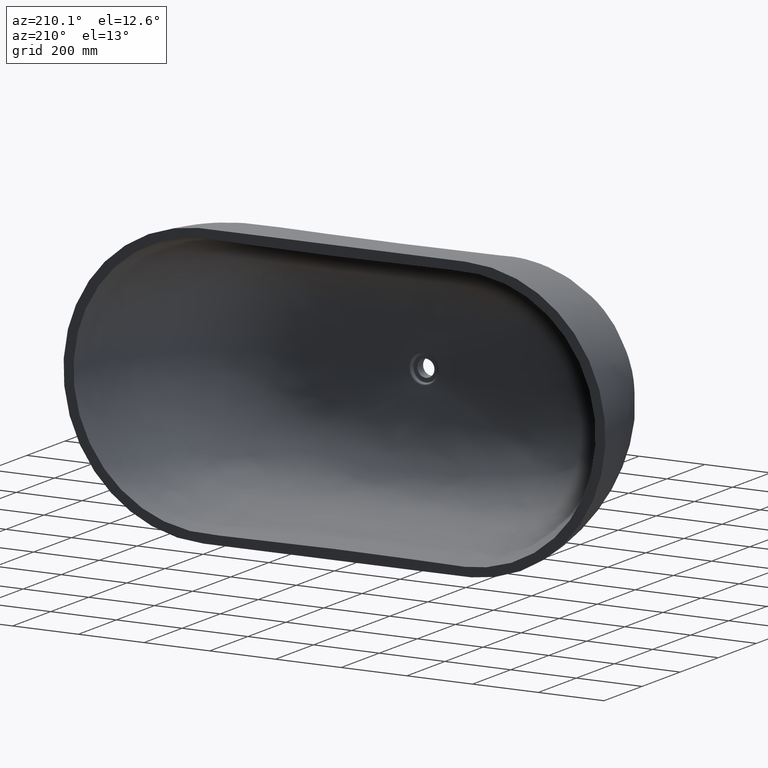
[diagram: clean part render]
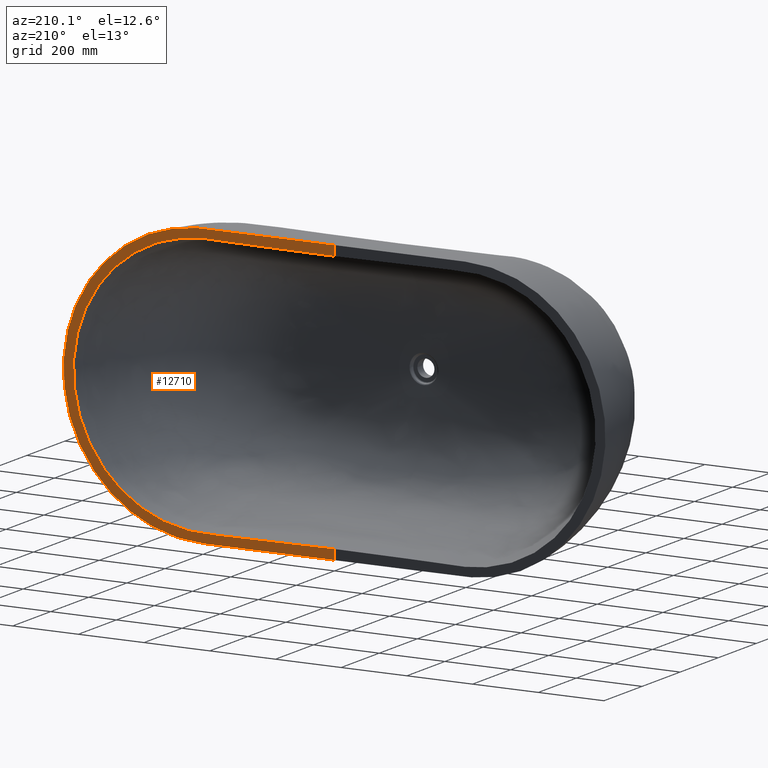
[diagram: same view with one face highlighted and labeled with its STEP entity id]
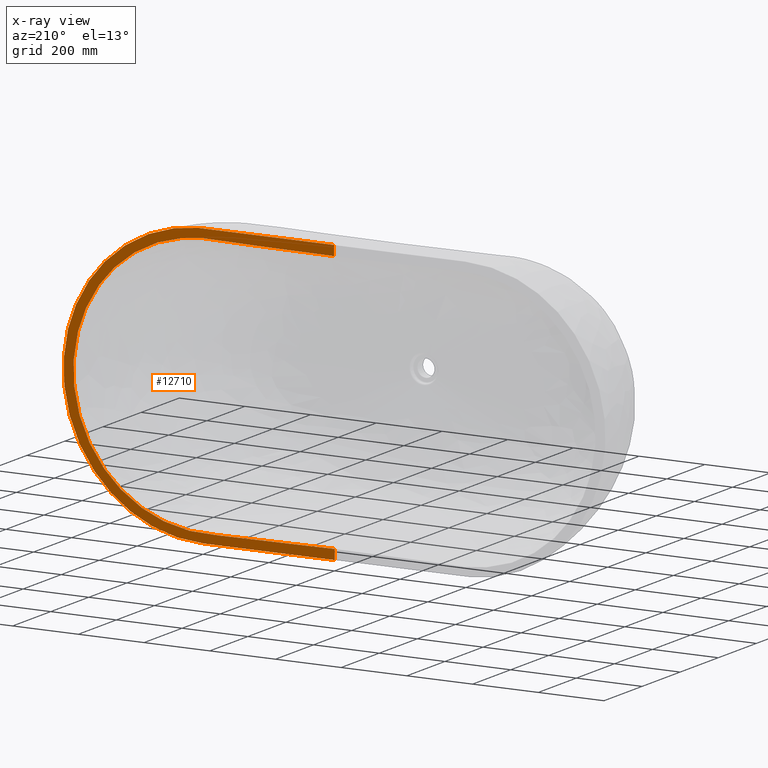
[diagram: x-ray of the same camera — body ghosted, the highlighted face saturated]
A machine part, auxiliary view. The second image highlights one B-rep face of the part: STEP entity #12710.
The next image is the same camera in x-ray: the body ghosted, the highlighted face saturated — about 0% of this face is hidden behind the body in this view.
In plain terms, the highlighted face is a freeform B-spline surface patch.
Its self-contained STEP definition (entity closure, byte-faithful):
#9 = CARTESIAN_POINT ( 'NONE',  ( 37.26830070188110300, -2.205048900227839500E-005, 402.0548231979287300 ) ) ;
#21 = CARTESIAN_POINT ( 'NONE',  ( -408.3127790862519600, -0.0002688505596389410400, 418.2911964753117200 ) ) ;
#72 = CARTESIAN_POINT ( 'NONE',  ( -491.0358882362319800, -0.007614932389564568600, 388.9652845930134500 ) ) ;
#85 = CARTESIAN_POINT ( 'NONE',  ( -785.6104118405927500, -0.0007646980293298874400, 163.2428406801680900 ) ) ;
#129 = CARTESIAN_POINT ( 'NONE',  ( -800.1150433570650200, -0.01648219023836040900, -5.765322476963071300E-011 ) ) ;
#140 = CARTESIAN_POINT ( 'NONE',  ( -535.7699451415784300, -0.0004181817834572133300, -395.2768001941765900 ) ) ;
#158 = EDGE_CURVE ( 'NONE', #2053, #5048, #2385, .T. ) ;
#184 = CARTESIAN_POINT ( 'NONE',  ( -491.0358882362212400, -0.007614932389570659200, -388.9652845931282200 ) ) ;
#196 = CARTESIAN_POINT ( 'NONE',  ( 441.5983047620247800, -0.0003055229875640529600, -416.9471282527957200 ) ) ;
#227 = CARTESIAN_POINT ( 'NONE',  ( 0.9986041738154187700, -5.318320675435652700E-043, 424.9999999999795900 ) ) ;
#238 = CARTESIAN_POINT ( 'NONE',  ( 501.7318639143859400, -0.007881781362372308400, -386.2262916190866200 ) ) ;
#252 = CARTESIAN_POINT ( 'NONE',  ( 800.3351937034551600, -0.0007891686555459163000, -121.0803730066288500 ) ) ;
#295 = CARTESIAN_POINT ( 'NONE',  ( 793.3664611231370100, -0.01623410018750656400, 63.79588128237909200 ) ) ;
#309 = CARTESIAN_POINT ( 'NONE',  ( 531.4422711116182000, -0.0004128077829505175800, 396.7400212893956000 ) ) ;
#356 = CARTESIAN_POINT ( 'NONE',  ( 454.8799204223285000, -0.006726600602167910300, 396.7336606167905900 ) ) ;
#371 = CARTESIAN_POINT ( 'NONE',  ( 1.005954373980832300, 6.868897927208695800E-011, 409.9811691954306500 ) ) ;
#418 = CARTESIAN_POINT ( 'NONE',  ( -57.33064663989235800, -0.0001703518932710757400, 395.0486320273590800 ) ) ;
#429 = CARTESIAN_POINT ( 'NONE',  ( -530.1436898198019200, -0.002299999952411472200, 389.7279784295894300 ) ) ;
#469 = CARTESIAN_POINT ( 'NONE',  ( -638.4336051673867600, -0.01385824909386822500, 318.1723504209851400 ) ) ;
#484 = CARTESIAN_POINT ( 'NONE',  ( -778.2044081581171900, -0.004205839224186601900, -161.5057876293930400 ) ) ;
#529 = CARTESIAN_POINT ( 'NONE',  ( -683.0599632408435600, -0.01538207385430048900, -278.6984465880106000 ) ) ;
#542 = CARTESIAN_POINT ( 'NONE',  ( -403.8820465436453400, -0.001478678256017234700, -411.7261120164392300 ) ) ;
#568 = CARTESIAN_POINT ( 'NONE',  ( 254.7951647416352600, -0.002713905869353191400, -396.3128744090336100 ) ) ;
#580 = CARTESIAN_POINT ( 'NONE',  ( 1.674144827315134100E-005, 0.002713906416945265900, -393.6117191515344900 ) ) ;
#589 = CARTESIAN_POINT ( 'NONE',  ( 557.0001715101092300, -0.002485984513670881500, -380.3934104329238200 ) ) ;
#608 = CARTESIAN_POINT ( 'NONE',  ( -510.6847639037811700, -5.473822126268816700E-045, 410.4950837233950000 ) ) ;
#617 = CARTESIAN_POINT ( 'NONE',  ( 715.3682951078062600, -0.01653579806302331700, -240.4068882149404100 ) ) ;
#629 = CARTESIAN_POINT ( 'NONE',  ( 683.0599632408607200, -0.01538207385421682200, -278.6984465878434200 ) ) ;
#641 = CARTESIAN_POINT ( 'NONE',  ( 756.3991934803281100, -0.004014865760756106800, 204.4192353967412400 ) ) ;
#660 = CARTESIAN_POINT ( 'NONE',  ( -828.0146633100720200, -1.231609978410483800E-044, 7.745540320236443700E-013 ) ) ;
#665 = CARTESIAN_POINT ( 'NONE',  ( 586.2596827593997700, -0.01214301604180399400, 352.2220904548137800 ) ) ;
#681 = CARTESIAN_POINT ( 'NONE',  ( 638.4336051673720900, -0.01385824909397461900, 318.1723504211432200 ) ) ;
#694 = CARTESIAN_POINT ( 'NONE',  ( 397.6439459329503700, -0.001440919157501238500, 411.8115825407270400 ) ) ;
#712 = CARTESIAN_POINT ( 'NONE',  ( -510.6847639037827100, 0.0000000000000000000, -410.4950837233942000 ) ) ;
#721 = CARTESIAN_POINT ( 'NONE',  ( 36.91561639857204100, -4.070859151244011400E-005, 394.5531869871691100 ) ) ;
#735 = CARTESIAN_POINT ( 'NONE',  ( 57.33064663989165400, -0.0001703518933104171600, 395.0486320273749900 ) ) ;
#746 = CARTESIAN_POINT ( 'NONE',  ( -393.2771241437704400, -0.003405808876350459400, 405.2171312240660100 ) ) ;
#765 = CARTESIAN_POINT ( 'NONE',  ( 521.7400992848205300, 2.189528850507526700E-044, -407.3559712817490800 ) ) ;
#804 = CARTESIAN_POINT ( 'NONE',  ( -749.1212752576286700, -0.009489682379945870900, 202.1700032812754600 ) ) ;
#824 = CARTESIAN_POINT ( 'NONE',  ( 821.1216964896368600, 5.473822126268816700E-045, 66.26489767396223800 ) ) ;
#879 = CARTESIAN_POINT ( 'NONE',  ( 473.2842284811349000, 2.736911063134408300E-045, 419.4958006171245900 ) ) ;
#936 = CARTESIAN_POINT ( 'NONE',  ( -59.77750535648050300, 2.284719237567422600E-011, 422.5040546855295800 ) ) ;
#955 = CARTESIAN_POINT ( 'NONE',  ( 266.6666666666679900, 2.189528850507511500E-044, -425.0000000000010800 ) ) ;
#991 = CARTESIAN_POINT ( 'NONE',  ( -662.6128750861530500, 1.848899030239028800E-011, 332.8973193045711700 ) ) ;
#1010 = CARTESIAN_POINT ( 'NONE',  ( 743.8293671786080900, 1.094764425253763300E-044, -251.5287510798314100 ) ) ;
#1046 = CARTESIAN_POINT ( 'NONE',  ( -708.3914981799841800, 1.800769915497915500E-011, -290.9451792151196500 ) ) ;
#1064 = CARTESIAN_POINT ( 'NONE',  ( 611.0397994137315400, 2.736911063134408300E-045, 371.1316464450965200 ) ) ;
#1088 = CARTESIAN_POINT ( 'NONE',  ( -551.1444607806215600, -0.005875963238620863200, -375.1590345869678300 ) ) ;
#1102 = CARTESIAN_POINT ( 'NONE',  ( 1.398220232667245000E-006, 2.377590926280533700E-011, -422.3842783903176000 ) ) ;
#1119 = CARTESIAN_POINT ( 'NONE',  ( 38.32635420241210500, 1.021501020214621400E-031, 424.5597318302076200 ) ) ;
#1140 = CARTESIAN_POINT ( 'NONE',  ( 399.4519171221966800, -0.003495057650519091000, -405.1608267185230800 ) ) ;
#1152 = CARTESIAN_POINT ( 'NONE',  ( 708.3914981799854300, 1.800568337985721900E-011, -290.9451792151060100 ) ) ;
#1192 = CARTESIAN_POINT ( 'NONE',  ( 770.7985107921291500, -0.009941074181412835500, -159.7681529200052900 ) ) ;
#1206 = CARTESIAN_POINT ( 'NONE',  ( 662.6128750861524800, 1.848831485897306800E-011, 332.8973193045841300 ) ) ;
#1249 = CARTESIAN_POINT ( 'NONE',  ( 524.5180515143215400, -0.005436363387197380500, 384.1786471949185400 ) ) ;
#1264 = CARTESIAN_POINT ( 'NONE',  ( 59.77750535648019100, 2.284538965566723400E-011, 422.5040546855308900 ) ) ;
#1311 = CARTESIAN_POINT ( 'NONE',  ( 1.009614268597218000, 1.029905356961352300E-010, 402.4717537931557000 ) ) ;
#1325 = CARTESIAN_POINT ( 'NONE',  ( -468.2641790098434700, -0.0003363300204566914900, 413.2882688122059000 ) ) ;
#1372 = CARTESIAN_POINT ( 'NONE',  ( -516.5398120551878900, -0.008256155640847008500, 381.8120061677751100 ) ) ;
#1385 = CARTESIAN_POINT ( 'NONE',  ( -813.5520708261192300, -0.0008117050653861856400, 65.59180225814820600 ) ) ;
#1423 = CARTESIAN_POINT ( 'NONE',  ( -780.3561617231350700, -0.01578337205300014300, -117.6968248442286600 ) ) ;
#1436 = CARTESIAN_POINT ( 'NONE',  ( -516.2826228068735200, -0.0003940890664303533800, -401.5938101923592300 ) ) ;
#1473 = CARTESIAN_POINT ( 'NONE',  ( -428.8995924828998300, -0.006110460029988938300, -399.8907129730003500 ) ) ;
#1484 = CARTESIAN_POINT ( 'NONE',  ( 505.3252909736492000, -0.0003807466159418195800, -404.6237606456296000 ) ) ;
#1531 = CARTESIAN_POINT ( 'NONE',  ( 520.7682429936654700, -0.008363635636347529700, -380.4785835680890500 ) ) ;
#1543 = CARTESIAN_POINT ( 'NONE',  ( 820.4056854201070300, -0.0008241095696531580400, 1.633568168817917900E-011 ) ) ;
#1585 = CARTESIAN_POINT ( 'NONE',  ( 765.8613521979336800, -0.01529395959644635200, 158.6091481222144600 ) ) ;
#1597 = CARTESIAN_POINT ( 'NONE',  ( 505.3252909736434000, -0.0003807466159588932700, 404.6237606456610400 ) ) ;
#1639 = CARTESIAN_POINT ( 'NONE',  ( 396.4991006290328000, -0.005377011572423724000, 400.7837690144354500 ) ) ;
#1650 = CARTESIAN_POINT ( 'NONE',  ( -32.59121558500881800, -9.328916147606677200E-006, 409.9913005215880700 ) ) ;
#1692 = CARTESIAN_POINT ( 'NONE',  ( -280.3936974534711300, -0.003396019586381175500, 396.7536750615507800 ) ) ;
#1705 = CARTESIAN_POINT ( 'NONE',  ( -598.6485502408163500, -0.002782774780797194300, 361.6784843518280500 ) ) ;
#1749 = CARTESIAN_POINT ( 'NONE',  ( -715.3682951078044400, -0.01653579806254344000, 240.4068882149406900 ) ) ;
#1759 = CARTESIAN_POINT ( 'NONE',  ( -729.5982633595555200, -0.003789454118914746400, -245.9695509946617700 ) ) ;
#1764 = ORIENTED_EDGE ( 'NONE', *, *, #8339, .F. ) ;
#1801 = CARTESIAN_POINT ( 'NONE',  ( -586.2596827593999900, -0.01214301604255664200, -352.2220904548130400 ) ) ;
#1814 = CARTESIAN_POINT ( 'NONE',  ( -260.7298604568621300, -0.0006219367643444440900, -410.6565908819537800 ) ) ;
#1841 = CARTESIAN_POINT ( 'NONE',  ( 395.0228934228471800, -0.006452413732323992800, -398.5951732159358600 ) ) ;
#1855 = CARTESIAN_POINT ( 'NONE',  ( 388.9113995116845800, -0.006287646777271682800, -398.6223241132658500 ) ) ;
#1864 = CARTESIAN_POINT ( 'NONE',  ( 651.6214143951586900, -0.003175849070703092800, -326.2057621641326900 ) ) ;
#1884 = CARTESIAN_POINT ( 'NONE',  ( -537.0316229016250400, -5.473822126268816700E-045, 402.3372870168546500 ) ) ;
#1889 = CARTESIAN_POINT ( 'NONE',  ( 763.3928083396766600, -0.01835275102385505000, -158.0294518369231000 ) ) ;
#1903 = CARTESIAN_POINT ( 'NONE',  ( 741.8436844143618600, -0.01751941237787432700, -199.9194784077251400 ) ) ;
#1915 = CARTESIAN_POINT ( 'NONE',  ( 696.8764786984060000, -0.003525058954897219200, 285.3801164712479600 ) ) ;
#1932 = CARTESIAN_POINT ( 'NONE',  ( -807.8274177207858900, -8.210733189403225000E-045, -122.3485374766974000 ) ) ;
#1938 = CARTESIAN_POINT ( 'NONE',  ( 518.8935444054185400, -0.01003636250688071800, 378.6283819314520000 ) ) ;
#1952 = CARTESIAN_POINT ( 'NONE',  ( 545.2898447203178900, -0.01084793140078433400, 369.9235315396267700 ) ) ;
#1965 = CARTESIAN_POINT ( 'NONE',  ( 176.0015384845636400, -0.0002224673331791815200, 410.2303718233965800 ) ) ;
#1984 = CARTESIAN_POINT ( 'NONE',  ( -446.3612600062478500, 0.0000000000000000000, -423.3429199510205200 ) ) ;
#1990 = CARTESIAN_POINT ( 'NONE',  ( 1.013251861863315700, 1.377162302192138000E-010, 394.9623383908799500 ) ) ;
#2004 = CARTESIAN_POINT ( 'NONE',  ( 14.76624655942821300, 4.840479361972250300E-013, 394.9623383891536200 ) ) ;
#2016 = CARTESIAN_POINT ( 'NONE',  ( -432.0736451263171000, -0.003971799171337851700, 404.1550594806966500 ) ) ;
#2037 = CARTESIAN_POINT ( 'NONE',  ( 541.3965089715179600, 2.189528850507526700E-044, -400.8253672235903200 ) ) ;
#2053 = VERTEX_POINT ( 'NONE', #11505 ) ;
#2074 = CARTESIAN_POINT ( 'NONE',  ( -785.3508617017456600, -0.01025919229379736200, 118.5431559452979700 ) ) ;
#2093 = CARTESIAN_POINT ( 'NONE',  ( 793.0164686813045600, 2.736911063134408300E-045, 164.9796029018207800 ) ) ;
#2151 = CARTESIAN_POINT ( 'NONE',  ( 412.7438131894288600, 0.0000000000000000000, 424.8561805147664400 ) ) ;
#2208 = CARTESIAN_POINT ( 'NONE',  ( -292.2548044312362700, 2.180964753531249900E-011, 422.6461815581681100 ) ) ;
#2224 = CARTESIAN_POINT ( 'NONE',  ( 412.7438131894294900, 0.0000000000000000000, -424.8561805147666100 ) ) ;
#2246 = B_SPLINE_SURFACE_WITH_KNOTS ( 'NONE', 3, 3, ( 
 ( #3035, #4296, #11871, #4351, #13153, #5654, #14424, #6953, #15692, #8222, #608, #9471, #1884, #10694, #3142, #11930, #4404, #13203, #5710, #14479, #7009, #15743, #8277, #660, #9521, #1932, #10745, #3201, #11986, #4462, #13257, #5765, #14537, #7063, #15802, #8327, #712, #9574, #1984, #10797, #3256, #12044, #4520, #13310, #5825, #14591, #7117, #15857, #8386, #765, #9629, #2037, #10846, #3314, #12097, #4573, #13367, #5878, #14650, #7173, #15914, #8436, #824, #9678, #2093, #10894, #3365, #12153, #4623, #13422, #5935, #14708, #7226, #15965, #8490, #879, #9730, #2151, #10946, #3417, #12210, #4676, #13479, #5985, #14758 ),
 ( #7285, #16020, #8546, #936, #9779, #2208, #10994, #3465, #12262, #4726, #13534, #6038, #14809, #7337, #16075, #8598, #991, #9832, #2262, #11045, #3518, #12319, #4778, #13585, #6092, #14861, #7390, #16134, #8653, #1046, #9881, #2317, #11101, #3568, #12376, #4835, #13640, #6147, #14922, #7448, #16188, #8704, #1102, #9932, #2369, #11154, #3616, #12427, #4884, #13693, #6197, #14970, #7498, #16238, #8749, #1152, #9980, #2424, #11204, #3666, #12479, #4936, #13747, #6253, #15018, #7553, #16291, #8798, #1206, #10028, #2471, #11251, #3716, #12527, #4993, #13801, #6307, #15070, #7601, #16340, #8851, #1264, #10083, #2526, #11301 ),
 ( #3770, #12577, #5051, #13852, #6361, #15126, #7657, #21, #8905, #1325, #10137, #2576, #11356, #3827, #12632, #5112, #13906, #6420, #15183, #7714, #85, #8962, #1385, #10195, #2629, #11413, #3887, #12691, #5170, #13959, #6478, #15237, #7767, #140, #9015, #1436, #10249, #2684, #11468, #3942, #12748, #5226, #14014, #6531, #15296, #7821, #196, #9070, #1484, #10303, #2739, #11519, #3996, #12800, #5286, #14076, #6579, #15347, #7873, #252, #9128, #1543, #10356, #2798, #11574, #4056, #12855, #5343, #14133, #6642, #15400, #7924, #309, #9184, #1597, #10413, #2860, #11627, #4113, #12913, #5401, #14189, #6708, #15457, #7985 ),
 ( #371, #9242, #1650, #10471, #2920, #11687, #4170, #12969, #5462, #14240, #6764, #15515, #8042, #429, #9294, #1705, #10523, #2973, #11744, #4218, #13024, #5517, #14296, #6816, #15572, #8097, #484, #9344, #1759, #10579, #3020, #11801, #4274, #13082, #5576, #14352, #6878, #15622, #8146, #542, #9402, #1814, #10630, #3067, #11849, #4329, #13136, #5633, #14404, #6931, #15672, #8200, #589, #9452, #1864, #10677, #3120, #11909, #4385, #13186, #5691, #14457, #6989, #15722, #8258, #641, #9504, #1915, #10725, #3181, #11961, #4438, #13235, #5742, #14512, #7041, #15781, #8308, #694, #9554, #1965, #10777, #3235, #12019, #4496 ),
 ( #13289, #5800, #14567, #7095, #15835, #8365, #746, #9610, #2016, #10827, #3291, #12075, #4552, #13346, #5854, #14627, #7151, #15890, #8415, #804, #9660, #2074, #10876, #3557, #12364, #4819, #13630, #6136, #14907, #7434, #16176, #8693, #1088, #9920, #2353, #11142, #3602, #12414, #4873, #13679, #6183, #14958, #7483, #16225, #8739, #1140, #9967, #2411, #11192, #3653, #12464, #4922, #13735, #6240, #15005, #7538, #16277, #8784, #1192, #10012, #2458, #11241, #3700, #12516, #4976, #13787, #6293, #15057, #7586, #16327, #8836, #1249, #10070, #2514, #11289, #3759, #12563, #5037, #13840, #6348, #15114, #7644, #9, #8891, #1311 ),
 ( #10122, #2566, #11344, #3815, #12619, #5100, #13894, #6407, #15170, #7700, #72, #8945, #1372, #10179, #2617, #11401, #3873, #12674, #5156, #13945, #6466, #15224, #7756, #129, #9001, #1423, #10236, #2671, #11452, #3931, #12735, #5214, #14003, #6520, #15284, #7810, #184, #9057, #1473, #10292, #2726, #11508, #3982, #12787, #5274, #14062, #6570, #15334, #7862, #238, #9114, #1531, #10342, #2785, #11562, #4042, #12843, #5329, #14120, #6627, #15388, #7912, #295, #9172, #1585, #10402, #2846, #11616, #4102, #12900, #5389, #14176, #6691, #15444, #7970, #356, #9228, #1639, #10459, #2906, #11673, #4159, #12957, #5449, #14227 ),
 ( #6753, #15503, #8029, #418, #9282, #1692, #10511, #2961, #11732, #4208, #13011, #5504, #14286, #6805, #15558, #8083, #469, #9334, #1749, #10571, #3010, #11791, #4263, #13068, #5564, #14340, #6863, #15611, #8132, #529, #9387, #1801, #10617, #3055, #11836, #4318, #13126, #5620, #14393, #6923, #15660, #8190, #580, #9441, #1855, #10669, #3110, #11896, #4374, #13175, #5678, #14444, #6976, #15712, #8244, #629, #9494, #1903, #10715, #3167, #11949, #4425, #13223, #5733, #14503, #7028, #15766, #8296, #681, #9541, #1952, #10764, #3220, #12005, #4484, #13278, #5787, #14558, #7082, #15820, #8353, #735, #9595, #2004, #10817 ) ),
 .UNSPECIFIED., .F., .T., .F.,
 ( 4, 1, 1, 1, 4 ),
 ( 4, 1, 1, 1, 2, 2, 2, 2, 2, 1, 1, 1, 1, 1, 1, 1, 1, 1, 1, 1, 1, 1, 1, 1, 1, 1, 2, 2, 2, 2, 2, 1, 2, 2, 2, 2, 2, 1, 1, 1, 1, 1, 1, 1, 1, 1, 1, 1, 1, 1, 1, 1, 1, 1, 2, 2, 2, 2, 2, 1, 1, 1, 4 ),
 ( 0.0000000000000000000, 0.008695029760731836900, 0.01739005952146367400, 0.02608508928219550200, 0.03478011904292734700 ),
 ( 0.0000000000000000000, 0.009291237382402561800, 0.01393685607360395400, 0.01858247476480512400, 0.09291237382402552100, 0.09735759374258290400, 0.1164611368433874400, 0.1246115803238422600, 0.1278934392747961300, 0.1452749158826836500, 0.1609740912289248100, 0.1736787968712914500, 0.1889467196373979000, 0.1976374579413418000, 0.2092978130915985100, 0.2238187289706709000, 0.2296489065457990600, 0.2500000000008615900, 0.2703510934542002200, 0.2761812710293289900, 0.2907021869084008300, 0.3023625420586580900, 0.3110532803626013800, 0.3263212031287084900, 0.3390259087710744100, 0.3547250841173162400, 0.3721065607252031500, 0.3753884196761575500, 0.3835388631566117900, 0.4026424062574170400, 0.4070876261759743800, 0.4999999999999997800, 0.5929123738240251700, 0.5973575937425827900, 0.6164611368433874400, 0.6246115803238424500, 0.6278934392747961300, 0.6452749158826833800, 0.6609740912289250300, 0.6736787968712914000, 0.6889467196373981700, 0.6976374579413415800, 0.7092978130915987800, 0.7238187289706706800, 0.7296489065457993900, 0.7500000000008614200, 0.7703510934542006100, 0.7761812710293288800, 0.7907021869084012200, 0.8023625420586579800, 0.8110532803626018300, 0.8263212031287083800, 0.8390259087710749700, 0.8547250841173161800, 0.8721065607252038700, 0.8753884196761576600, 0.8835388631566125600, 0.9026424062574169800, 0.9070876261759743800, 0.9814175252351948800, 0.9860631439263961600, 0.9907087626175974400, 1.000000000000000000 ),
 .UNSPECIFIED. ) ;
#2262 = CARTESIAN_POINT ( 'NONE',  ( -741.4574947042668800, 1.763861396597076000E-011, 250.6022843225655400 ) ) ;
#2284 = CARTESIAN_POINT ( 'NONE',  ( 793.0164686813042200, 1.642146637880645000E-044, -164.9796029018204400 ) ) ;
#2317 = CARTESIAN_POINT ( 'NONE',  ( -608.9745454164851700, 1.904024159220257200E-011, -369.5561815796381800 ) ) ;
#2333 = CARTESIAN_POINT ( 'NONE',  ( 541.3965089715161400, 5.473822126268816700E-045, 400.8253672235908300 ) ) ;
#2353 = CARTESIAN_POINT ( 'NONE',  ( -520.2648070567262300, -0.005366501386625937900, -385.5445032436728600 ) ) ;
#2369 = CARTESIAN_POINT ( 'NONE',  ( 404.9231791469142100, 2.090357877672392400E-011, -422.8019465959092700 ) ) ;
#2385 = B_SPLINE_CURVE_WITH_KNOTS ( 'NONE', 3,
 ( #4508, #9562, #9337, #9061, #8572, #9005, #13559 ),
 .UNSPECIFIED., .F., .F.,
 ( 4, 1, 1, 1, 4 ),
 ( 0.0000000000000000000, 0.008695029760731836900, 0.01739005952146367400, 0.02608508928219550200, 0.03478011904292734700 ),
 .UNSPECIFIED. ) ;
#2387 = CARTESIAN_POINT ( 'NONE',  ( 0.9986041738154187700, -5.318320675435652700E-043, 424.9999999999795900 ) ) ;
#2411 = CARTESIAN_POINT ( 'NONE',  ( 458.2253500685668500, -0.004372290562740660500, -400.8726101778332800 ) ) ;
#2424 = CARTESIAN_POINT ( 'NONE',  ( 768.5294143260484800, 1.732466149420100900E-011, -208.1665453073009100 ) ) ;
#2458 = CARTESIAN_POINT ( 'NONE',  ( 798.4128488656147100, -0.01055216559556540500, -64.24511149299586100 ) ) ;
#2471 = CARTESIAN_POINT ( 'NONE',  ( 566.7608835771258100, 1.944731689365231300E-011, 389.1161405022043600 ) ) ;
#2514 = CARTESIAN_POINT ( 'NONE',  ( 505.3689257086583100, -0.005123158093787771900, 390.0686101795222400 ) ) ;
#2526 = CARTESIAN_POINT ( 'NONE',  ( 15.28351707437840400, -7.562133494241813600E-018, 422.4968615323921300 ) ) ;
#2566 = CARTESIAN_POINT ( 'NONE',  ( -12.78918705870324500, 2.516473169635648400E-010, 397.4654768598898000 ) ) ;
#2576 = CARTESIAN_POINT ( 'NONE',  ( -516.2826228068757900, -0.0003940890664370479500, 401.5938101923276200 ) ) ;
#2617 = CARTESIAN_POINT ( 'NONE',  ( -547.2412507199263700, -0.009039943067120772400, 371.6688358524096400 ) ) ;
#2629 = CARTESIAN_POINT ( 'NONE',  ( -813.5520708261213900, -0.0008117050653842853600, -65.59180225817925700 ) ) ;
#2671 = CARTESIAN_POINT ( 'NONE',  ( -744.2695083464160500, -0.01459951070504275300, -200.6698100636998600 ) ) ;
#2684 = CARTESIAN_POINT ( 'NONE',  ( -468.2641790098424500, -0.0003363300204329740300, -413.2882688122351700 ) ) ;
#2726 = CARTESIAN_POINT ( 'NONE',  ( -390.3665080669649700, -0.005239705772584315000, -400.8206362768617600 ) ) ;
#2739 = CARTESIAN_POINT ( 'NONE',  ( 531.4422711116236500, -0.0004128077829349328800, -396.7400212893623500 ) ) ;
#2773 = CARTESIAN_POINT ( 'NONE',  ( 1.005954373980832300, 6.868897927208695800E-011, 409.9811691954306500 ) ) ;
#2785 = CARTESIAN_POINT ( 'NONE',  ( 588.3242039285045200, -0.01011918029844769400, -353.7985497213339300 ) ) ;
#2798 = CARTESIAN_POINT ( 'NONE',  ( 800.3351937034525500, -0.0007891686555471173800, 121.0803730066763500 ) ) ;
#2846 = CARTESIAN_POINT ( 'NONE',  ( 717.7398181768124900, -0.01377983208613514800, 241.3344204167904600 ) ) ;
#2860 = CARTESIAN_POINT ( 'NONE',  ( 441.5983047620204600, -0.0003055229875954287400, 416.9471282528232900 ) ) ;
#2906 = CARTESIAN_POINT ( 'NONE',  ( 281.4715486192343400, -0.002830016379493926200, 399.1076194125738500 ) ) ;
#2920 = CARTESIAN_POINT ( 'NONE',  ( -176.0015384845652900, -0.0002224673331515368900, 410.2303718233724800 ) ) ;
#2961 = CARTESIAN_POINT ( 'NONE',  ( -395.0228934228460400, -0.006452413731309137100, 398.5951732159357400 ) ) ;
#2973 = CARTESIAN_POINT ( 'NONE',  ( -696.8764786984143000, -0.003525058954873083100, 285.3801164711644600 ) ) ;
#3010 = CARTESIAN_POINT ( 'NONE',  ( -763.3928083396750700, -0.01835275102355922400, 158.0294518369231600 ) ) ;
#3020 = CARTESIAN_POINT ( 'NONE',  ( -651.6214143951499400, -0.003175849070733572800, -326.2057621642117100 ) ) ;
#3035 = CARTESIAN_POINT ( 'NONE',  ( 0.9986041738154187700, -5.318320675435652700E-043, 424.9999999999795900 ) ) ;
#3055 = CARTESIAN_POINT ( 'NONE',  ( -518.8935444054188800, -0.01003636250771989600, -378.6283819314514300 ) ) ;
#3067 = CARTESIAN_POINT ( 'NONE',  ( 260.7298604568647400, -0.0006219367642701006700, -410.6565908819187000 ) ) ;
#3094 = CARTESIAN_POINT ( 'NONE',  ( 453.2074172661078300, -0.008071920522103008200, -394.6640866653494900 ) ) ;
#3110 = CARTESIAN_POINT ( 'NONE',  ( 427.3127746366632800, -0.007332551856494267500, -397.7584588230570300 ) ) ;
#3120 = CARTESIAN_POINT ( 'NONE',  ( 729.5982633595634800, -0.003789454118897661500, -245.9695509945747500 ) ) ;
#3142 = CARTESIAN_POINT ( 'NONE',  ( -568.7130856997586100, -8.210733189403225000E-045, 390.8606250323380800 ) ) ;
#3152 = CARTESIAN_POINT ( 'NONE',  ( 790.8432721463081000, -0.01948091970121028000, -63.57118285464213900 ) ) ;
#3167 = CARTESIAN_POINT ( 'NONE',  ( 777.8588310726682900, -0.01894004595515574200, -117.2735112732379200 ) ) ;
#3181 = CARTESIAN_POINT ( 'NONE',  ( 598.6485502408080500, -0.002782774780807410100, 361.6784843519016000 ) ) ;
#3201 = CARTESIAN_POINT ( 'NONE',  ( -770.9554763522515900, -1.094764425253763300E-044, -208.9159367753486000 ) ) ;
#3208 = CARTESIAN_POINT ( 'NONE',  ( 499.9135423268405100, -0.009458137394453603600, 384.3049860333696900 ) ) ;
#3220 = CARTESIAN_POINT ( 'NONE',  ( 514.6775211419185300, -0.009907386515854342500, 379.9455931982063800 ) ) ;
#3235 = CARTESIAN_POINT ( 'NONE',  ( 37.62098514053700900, -9.329053449424995600E-006, 409.5564594086882300 ) ) ;
#3256 = CARTESIAN_POINT ( 'NONE',  ( -406.3790856346381600, 0.0000000000000000000, -425.0000000000000600 ) ) ;
#3291 = CARTESIAN_POINT ( 'NONE',  ( -494.6076076515174700, -0.004949706252898858900, 392.8803072341455000 ) ) ;
#3314 = CARTESIAN_POINT ( 'NONE',  ( 611.0397994137326800, 2.189528850507526700E-044, -371.1316464450959500 ) ) ;
#3365 = CARTESIAN_POINT ( 'NONE',  ( 743.8293671786071900, 0.0000000000000000000, 251.5287510798320900 ) ) ;
#3417 = CARTESIAN_POINT ( 'NONE',  ( 293.3333333333325800, 0.0000000000000000000, 424.9999999999998900 ) ) ;
#3465 = CARTESIAN_POINT ( 'NONE',  ( -411.2668018217031500, 2.084628008028239800E-011, 422.6678525016150700 ) ) ;
#3481 = CARTESIAN_POINT ( 'NONE',  ( 473.2842284811350200, 0.0000000000000000000, -419.4958006171235100 ) ) ;
#3518 = CARTESIAN_POINT ( 'NONE',  ( -790.5477830677334600, 1.706114356813514300E-011, 164.4006821612698600 ) ) ;
#3532 = CARTESIAN_POINT ( 'NONE',  ( 821.1216964896367500, 9.579188720970429200E-045, -66.26489767396182600 ) ) ;
#3557 = CARTESIAN_POINT ( 'NONE',  ( -805.1877124619427400, -0.01071342413652179500, -4.697098663450444500E-011 ) ) ;
#3568 = CARTESIAN_POINT ( 'NONE',  ( -539.5209876948711100, 1.971145199963113600E-011, -398.9758448804524800 ) ) ;
#3582 = CARTESIAN_POINT ( 'NONE',  ( 521.7400992848186000, 2.736911063134408300E-045, 407.3559712817497600 ) ) ;
#3602 = CARTESIAN_POINT ( 'NONE',  ( -494.6076076515091100, -0.004949706252890792400, -392.8803072342393000 ) ) ;
#3616 = CARTESIAN_POINT ( 'NONE',  ( 444.7736082581742500, 2.057273909094236000E-011, -421.2109893849457200 ) ) ;
#3653 = CARTESIAN_POINT ( 'NONE',  ( 505.3689257086703000, -0.005123158093696220100, -390.0686101794255500 ) ) ;
#3666 = CARTESIAN_POINT ( 'NONE',  ( 805.3300097150091700, 1.687193327721871900E-011, -121.9258159866745200 ) ) ;
#3700 = CARTESIAN_POINT ( 'NONE',  ( 798.4128488656199400, -0.01055216559557670800, 64.24511149309111600 ) ) ;
#3716 = CARTESIAN_POINT ( 'NONE',  ( 535.1685056382893900, 1.974791827486500600E-011, 400.4715317743683700 ) ) ;
#3759 = CARTESIAN_POINT ( 'NONE',  ( 458.2253500685578200, -0.004372290562847447500, 400.8726101779224100 ) ) ;
#3770 = CARTESIAN_POINT ( 'NONE',  ( 1.002282314991373500, 3.435272916563320600E-011, 417.4905845977050400 ) ) ;
#3815 = CARTESIAN_POINT ( 'NONE',  ( -57.55299569287988200, -0.0001419598925512097900, 397.5445833915784400 ) ) ;
#3827 = CARTESIAN_POINT ( 'NONE',  ( -535.7699451415805900, -0.0004181817834676547900, 395.2768001941439000 ) ) ;
#3873 = CARTESIAN_POINT ( 'NONE',  ( -640.6313310595029400, -0.01154854121571838800, 319.5116941125453400 ) ) ;
#3887 = CARTESIAN_POINT ( 'NONE',  ( -785.6104118405899000, -0.0007646980293339066800, -163.2428406802139900 ) ) ;
#3931 = CARTESIAN_POINT ( 'NONE',  ( -685.3625278217888300, -0.01281839521816527600, -279.8125063797126600 ) ) ;
#3942 = CARTESIAN_POINT ( 'NONE',  ( -408.3127790862490700, -0.0002688505596222338100, -418.2911964753377600 ) ) ;
#3982 = CARTESIAN_POINT ( 'NONE',  ( 1.535252669676612800E-005, 0.002261588768500088400, -396.2273461442861700 ) ) ;
#3996 = CARTESIAN_POINT ( 'NONE',  ( 562.8564793318639700, -0.0004519971596629950000, -385.6271714419012300 ) ) ;
#4028 = CARTESIAN_POINT ( 'NONE',  ( 1.012042033968660700, 1.258229634730512200E-010, 397.4654768583052400 ) ) ;
#4042 = CARTESIAN_POINT ( 'NONE',  ( 685.3625278218039500, -0.01281839521809369200, -279.8125063795594700 ) ) ;
#4056 = CARTESIAN_POINT ( 'NONE',  ( 763.6772902736379400, -0.0007299755799760247800, 206.6677623712507200 ) ) ;
#4102 = CARTESIAN_POINT ( 'NONE',  ( 640.6313310594888400, -0.01154854121581042200, 319.5116941126901800 ) ) ;
#4113 = CARTESIAN_POINT ( 'NONE',  ( 402.0113661714624400, -0.0002619852687059339700, 418.4058397877528800 ) ) ;
#4159 = CARTESIAN_POINT ( 'NONE',  ( 57.55299569287929300, -0.0001419598925845039900, 397.5445833915929400 ) ) ;
#4170 = CARTESIAN_POINT ( 'NONE',  ( -397.6439459329549800, -0.001440919157481109700, 411.8115825406758300 ) ) ;
#4208 = CARTESIAN_POINT ( 'NONE',  ( -453.2074172661050400, -0.008071920521215402200, 394.6640866653486300 ) ) ;
#4218 = CARTESIAN_POINT ( 'NONE',  ( -756.3991934803350400, -0.004014865760720435700, 204.4192353966516900 ) ) ;
#4263 = CARTESIAN_POINT ( 'NONE',  ( -790.8432721463065000, -0.01948091970107799400, 63.57118285464252900 ) ) ;
#4274 = CARTESIAN_POINT ( 'NONE',  ( -557.0001715101027500, -0.002485984513692869600, -380.3934104329927700 ) ) ;
#4296 = CARTESIAN_POINT ( 'NONE',  ( -13.33333333333338000, 1.657114120257161300E-046, 425.0000000000000000 ) ) ;
#4318 = CARTESIAN_POINT ( 'NONE',  ( -499.9135423268405700, -0.009458137395344302600, -384.3049860333694000 ) ) ;
#4329 = CARTESIAN_POINT ( 'NONE',  ( 403.8820465436512600, -0.001478678256007367200, -411.7261120163873300 ) ) ;
#4351 = CARTESIAN_POINT ( 'NONE',  ( -60.00000000000034800, -5.986992950606518200E-046, 425.0000000000000000 ) ) ;
#4360 = CARTESIAN_POINT ( 'NONE',  ( 499.9135423268555800, -0.009458137395240109900, -384.3049860332408800 ) ) ;
#4374 = CARTESIAN_POINT ( 'NONE',  ( 489.2502389516121200, -0.009137918636871399400, -387.0076387297876900 ) ) ;
#4385 = CARTESIAN_POINT ( 'NONE',  ( 778.2044081581235600, -0.004205839224160823000, -161.5057876293011000 ) ) ;
#4404 = CARTESIAN_POINT ( 'NONE',  ( -664.8112131361973500, -1.094764425253763300E-044, 334.2355470356203000 ) ) ;
#4412 = CARTESIAN_POINT ( 'NONE',  ( 790.8432721463151400, -0.01948091970110373700, 63.57118285476914800 ) ) ;
#4425 = CARTESIAN_POINT ( 'NONE',  ( 797.5787059415857800, -0.01977862775376466500, 6.405419686961566900E-011 ) ) ;
#4438 = CARTESIAN_POINT ( 'NONE',  ( 530.1436898197946400, -0.002299999952438364300, 389.7279784296558200 ) ) ;
#4462 = CARTESIAN_POINT ( 'NONE',  ( -710.6945376964652000, 0.0000000000000000000, -292.0581068523055100 ) ) ;
#4469 = CARTESIAN_POINT ( 'NONE',  ( 453.2074172660958300, -0.008071920521270155300, 394.6640866654682300 ) ) ;
#4484 = CARTESIAN_POINT ( 'NONE',  ( 489.2502389515967100, -0.009137918636076203900, 387.0076387299134200 ) ) ;
#4496 = CARTESIAN_POINT ( 'NONE',  ( 1.005954373980832300, 6.868897927208695800E-011, 409.9811691954306500 ) ) ;
#4508 = CARTESIAN_POINT ( 'NONE',  ( 9.292664146916730800E-013, 5.473822126268856500E-045, -425.0000000000004500 ) ) ;
#4520 = CARTESIAN_POINT ( 'NONE',  ( -1.023486850826316200E-013, 0.0000000000000000000, -425.0000000000000000 ) ) ;
#4535 = CARTESIAN_POINT ( 'NONE',  ( 133.3333333333353600, 1.094764425253778900E-044, -425.0000000000006300 ) ) ;
#4552 = CARTESIAN_POINT ( 'NONE',  ( -520.2648070567358900, -0.005366501386616980700, 385.5445032435743500 ) ) ;
#4573 = CARTESIAN_POINT ( 'NONE',  ( 710.6945376964653200, 1.094764425253763300E-044, -292.0581068523056300 ) ) ;
#4623 = CARTESIAN_POINT ( 'NONE',  ( 664.8112131361980300, 2.736911063134408300E-045, 334.2355470356203600 ) ) ;
#4676 = CARTESIAN_POINT ( 'NONE',  ( 59.99999999999995000, 1.026341648675403100E-045, 425.0000000000000000 ) ) ;
#4726 = CARTESIAN_POINT ( 'NONE',  ( -471.6108786573695400, 2.032795104197097800E-011, 417.4266233488172000 ) ) ;
#4742 = CARTESIAN_POINT ( 'NONE',  ( 521.7400992848205300, 2.189528850507526700E-044, -407.3559712817490800 ) ) ;
#4778 = CARTESIAN_POINT ( 'NONE',  ( -818.5984879351306100, 1.669937999886091900E-011, 66.04053253535765600 ) ) ;
#4794 = CARTESIAN_POINT ( 'NONE',  ( 821.1216964896368600, 5.473822126268816700E-045, 66.26489767396223800 ) ) ;
#4819 = CARTESIAN_POINT ( 'NONE',  ( -785.3508617017379300, -0.01025919229380993200, -118.5431559454376200 ) ) ;
#4835 = CARTESIAN_POINT ( 'NONE',  ( -519.9209404588377800, 1.989509759645332200E-011, -405.4352509186193200 ) ) ;
#4854 = CARTESIAN_POINT ( 'NONE',  ( 473.2842284811349000, 2.736911063134408300E-045, 419.4958006171245900 ) ) ;
#4873 = CARTESIAN_POINT ( 'NONE',  ( -432.0736451263092000, -0.003971799171335387500, -404.1550594807806600 ) ) ;
#4884 = CARTESIAN_POINT ( 'NONE',  ( 508.8982729270715600, 1.999614964501708700E-011, -408.5379760308060800 ) ) ;
#4922 = CARTESIAN_POINT ( 'NONE',  ( 524.5180515143334800, -0.005436363387099769400, -384.1786471948187800 ) ) ;
#4936 = CARTESIAN_POINT ( 'NONE',  ( 825.4783373467503200, 1.660043497569261100E-011, 5.731468201399778800E-012 ) ) ;
#4976 = CARTESIAN_POINT ( 'NONE',  ( 770.7985107921200600, -0.009941074181501162500, 159.7681529201433100 ) ) ;
#4982 = EDGE_LOOP ( 'NONE', ( #9785, #6227, #8080, #1764 ) ) ;
#4993 = CARTESIAN_POINT ( 'NONE',  ( 508.8982729270679200, 1.999213346213734600E-011, 408.5379760308164800 ) ) ;
#5037 = CARTESIAN_POINT ( 'NONE',  ( 399.4519171221886600, -0.003495057650608341700, 405.1608267186007900 ) ) ;
#5048 = VERTEX_POINT ( 'NONE', #13245 ) ;
#5051 = CARTESIAN_POINT ( 'NONE',  ( -32.96225923572976800, -1.696122916371057700E-006, 417.4956505267741100 ) ) ;
#5100 = CARTESIAN_POINT ( 'NONE',  ( -281.4715486192414500, -0.002830016379542610800, 399.1076194125020600 ) ) ;
#5112 = CARTESIAN_POINT ( 'NONE',  ( -604.8440374219933300, -0.0005059590287026920800, 366.4052518486867600 ) ) ;
#5156 = CARTESIAN_POINT ( 'NONE',  ( -717.7398181768265900, -0.01377983208604014800, 241.3344204166308500 ) ) ;
#5170 = CARTESIAN_POINT ( 'NONE',  ( -736.7137497555829700, -0.0006889916433570444100, -248.7493508080760600 ) ) ;
#5214 = CARTESIAN_POINT ( 'NONE',  ( -588.3242039284901900, -0.01011918029853580000, -353.7985497214685300 ) ) ;
#5226 = CARTESIAN_POINT ( 'NONE',  ( -263.6981418024615800, -0.0001130793727376496400, -417.8283131729849600 ) ) ;
#5261 = CARTESIAN_POINT ( 'NONE',  ( 0.9998302208741056700, 1.145090966492290400E-011, 422.4968615325548200 ) ) ;
#5274 = CARTESIAN_POINT ( 'NONE',  ( 390.3665080669746300, -0.005239705772531602800, -400.8206362767677400 ) ) ;
#5286 = CARTESIAN_POINT ( 'NONE',  ( 658.2161989860659300, -0.0005774270844244601900, -330.2208638424720600 ) ) ;
#5329 = CARTESIAN_POINT ( 'NONE',  ( 744.2695083464294600, -0.01459951070497902100, -200.6698100635354600 ) ) ;
#5343 = CARTESIAN_POINT ( 'NONE',  ( 703.7854191470208900, -0.0006409197933302975000, 288.7193239407489500 ) ) ;
#5389 = CARTESIAN_POINT ( 'NONE',  ( 547.2412507199131800, -0.009039943067203083300, 371.6688358525365700 ) ) ;
#5401 = CARTESIAN_POINT ( 'NONE',  ( 178.0006880727964900, -4.044856402305925800E-005, 417.6151924673337700 ) ) ;
#5449 = CARTESIAN_POINT ( 'NONE',  ( 14.81327112664056700, -1.390017462391259200E-015, 397.4654768567206100 ) ) ;
#5452 = EDGE_CURVE ( 'NONE', #5048, #7853, #11182, .T. ) ;
#5462 = CARTESIAN_POINT ( 'NONE',  ( -436.8356622309855200, -0.001680376601227885100, 410.5512152106582600 ) ) ;
#5504 = CARTESIAN_POINT ( 'NONE',  ( -499.9135423268533600, -0.009458137394352890800, 384.3049860332415600 ) ) ;
#5517 = CARTESIAN_POINT ( 'NONE',  ( -792.8429986943635900, -0.004340427662653265600, 119.8119865062623600 ) ) ;
#5564 = CARTESIAN_POINT ( 'NONE',  ( -790.8432721463137800, -0.01948091970120135000, -63.57118285476875700 ) ) ;
#5576 = CARTESIAN_POINT ( 'NONE',  ( -525.8532292028935400, -0.002270442950795891800, -391.1425089142354100 ) ) ;
#5620 = CARTESIAN_POINT ( 'NONE',  ( -453.2074172660948100, -0.008071920522209848100, -394.6640866654661900 ) ) ;
#5633 = CARTESIAN_POINT ( 'NONE',  ( 463.2444470388825800, -0.001849815274766879500, -407.0805882511550600 ) ) ;
#5654 = CARTESIAN_POINT ( 'NONE',  ( -293.3333333333344500, -5.473822126268816700E-045, 424.9999999999984100 ) ) ;
#5663 = CARTESIAN_POINT ( 'NONE',  ( 518.8935444054337700, -0.01003636250762475500, -378.6283819313189300 ) ) ;
#5678 = CARTESIAN_POINT ( 'NONE',  ( 514.6775211419339900, -0.009907386516622127700, -379.9455931980743900 ) ) ;
#5691 = CARTESIAN_POINT ( 'NONE',  ( 805.9824525042365600, -0.004464377911537434400, -64.91858185895274900 ) ) ;
#5710 = CARTESIAN_POINT ( 'NONE',  ( -743.8293671786071900, -1.094764425253763300E-044, 251.5287510798317500 ) ) ;
#5719 = CARTESIAN_POINT ( 'NONE',  ( 763.3928083396648400, -0.01835275102367856700, 158.0294518371071300 ) ) ;
#5733 = CARTESIAN_POINT ( 'NONE',  ( 777.8588310726584000, -0.01894004595496274700, 117.2735112734256800 ) ) ;
#5742 = CARTESIAN_POINT ( 'NONE',  ( 510.8254602933468500, -0.002167490014380448400, 395.8314296444552800 ) ) ;
#5765 = CARTESIAN_POINT ( 'NONE',  ( -611.0397994137330200, 0.0000000000000000000, -371.1316464450957300 ) ) ;
#5773 = CARTESIAN_POINT ( 'NONE',  ( 395.0228934228366600, -0.006452413731390812200, 398.5951732160397100 ) ) ;
#5787 = CARTESIAN_POINT ( 'NONE',  ( 427.3127746366507200, -0.007332551855661170900, 397.7584588231684400 ) ) ;
#5800 = CARTESIAN_POINT ( 'NONE',  ( -12.88809174355737700, 2.059819652949255700E-010, 402.4717537944563900 ) ) ;
#5825 = CARTESIAN_POINT ( 'NONE',  ( 406.3790856346387800, 0.0000000000000000000, -425.0000000000000600 ) ) ;
#5854 = CARTESIAN_POINT ( 'NONE',  ( -551.1444607806311100, -0.005875963238611703900, 375.1590345868645500 ) ) ;
#5878 = CARTESIAN_POINT ( 'NONE',  ( 770.9554763522518200, 1.094764425253763300E-044, -208.9159367753486500 ) ) ;
#5935 = CARTESIAN_POINT ( 'NONE',  ( 568.7130856997587200, 2.736911063134408300E-045, 390.8606250323383100 ) ) ;
#5985 = CARTESIAN_POINT ( 'NONE',  ( 15.33054168096421700, -1.063829846499156300E-042, 424.9999999999593000 ) ) ;
#6038 = CARTESIAN_POINT ( 'NONE',  ( -519.9209404588376600, 1.989161129828139200E-011, 405.4352509186092600 ) ) ;
#6055 = CARTESIAN_POINT ( 'NONE',  ( 541.3965089715179600, 2.189528850507526700E-044, -400.8253672235903200 ) ) ;
#6092 = CARTESIAN_POINT ( 'NONE',  ( -818.5984879351314000, 1.670013023918621000E-011, -66.04053253536751800 ) ) ;
#6110 = CARTESIAN_POINT ( 'NONE',  ( 793.0164686813045600, 2.736911063134408300E-045, 164.9796029018207800 ) ) ;
#6136 = CARTESIAN_POINT ( 'NONE',  ( -749.1212752576186600, -0.009489682380001696100, -202.1700032814091500 ) ) ;
#6147 = CARTESIAN_POINT ( 'NONE',  ( -471.6108786573705600, 2.033705175494183600E-011, -417.4266233488267500 ) ) ;
#6162 = CARTESIAN_POINT ( 'NONE',  ( 412.7438131894288600, 0.0000000000000000000, 424.8561805147664400 ) ) ;
#6183 = CARTESIAN_POINT ( 'NONE',  ( -393.2771241437624800, -0.003405808876338968200, -405.2171312241429200 ) ) ;
#6197 = CARTESIAN_POINT ( 'NONE',  ( 535.1685056382925700, 1.975126661778312000E-011, -400.4715317743570600 ) ) ;
#6227 = ORIENTED_EDGE ( 'NONE', *, *, #158, .T. ) ;
#6240 = CARTESIAN_POINT ( 'NONE',  ( 592.4536126807573700, -0.006577467473276375600, -356.9509710540704600 ) ) ;
#6253 = CARTESIAN_POINT ( 'NONE',  ( 805.3300097150083700, 1.687226711437610100E-011, 121.9258159866908900 ) ) ;
#6293 = CARTESIAN_POINT ( 'NONE',  ( 722.4830390175146700, -0.008956891251659129100, 243.1889520979299000 ) ) ;
#6307 = CARTESIAN_POINT ( 'NONE',  ( 444.7736082581717500, 2.056386450562483100E-011, 421.2109893849547600 ) ) ;
#6348 = CARTESIAN_POINT ( 'NONE',  ( 283.6275898189381300, -0.001839510694232741300, 403.8154451599031600 ) ) ;
#6361 = CARTESIAN_POINT ( 'NONE',  ( -178.0006880727976900, -4.044856401134923800E-005, 417.6151924673214900 ) ) ;
#6407 = CARTESIAN_POINT ( 'NONE',  ( -396.4991006290418300, -0.005377011572353797300, 400.7837690143402400 ) ) ;
#6420 = CARTESIAN_POINT ( 'NONE',  ( -703.7854191470249800, -0.0006409197933243154100, 288.7193239407074000 ) ) ;
#6466 = CARTESIAN_POINT ( 'NONE',  ( -765.8613521979439200, -0.01529395959634594800, 158.6091481220457800 ) ) ;
#6478 = CARTESIAN_POINT ( 'NONE',  ( -658.2161989860610400, -0.0005774270844303580400, -330.2208638425115100 ) ) ;
#6520 = CARTESIAN_POINT ( 'NONE',  ( -520.7682429936522800, -0.008363635636422745600, -380.4785835682104700 ) ) ;
#6531 = CARTESIAN_POINT ( 'NONE',  ( 263.6981418024633400, -0.0001130793727066744500, -417.8283131729676800 ) ) ;
#6570 = CARTESIAN_POINT ( 'NONE',  ( 428.8995924829112000, -0.006110460029889932400, -399.8907129728981400 ) ) ;
#6579 = CARTESIAN_POINT ( 'NONE',  ( 736.7137497555874000, -0.0006889916433569925900, -248.7493508080325700 ) ) ;
#6627 = CARTESIAN_POINT ( 'NONE',  ( 780.3561617231449600, -0.01578337205297262700, -117.6968248440571500 ) ) ;
#6642 = CARTESIAN_POINT ( 'NONE',  ( 604.8440374219892400, -0.0005059590287010504900, 366.4052518487234200 ) ) ;
#6691 = CARTESIAN_POINT ( 'NONE',  ( 516.5398120551749300, -0.008256155640920841800, 381.8120061678957300 ) ) ;
#6708 = CARTESIAN_POINT ( 'NONE',  ( 37.97366965301816300, -1.696191583202837300E-006, 417.0580956194477300 ) ) ;
#6753 = CARTESIAN_POINT ( 'NONE',  ( 1.013251861863315700, 1.377162302192138000E-010, 394.9623383908799500 ) ) ;
#6764 = CARTESIAN_POINT ( 'NONE',  ( -499.9661336780495200, -0.002094106539791471200, 398.7522357538767300 ) ) ;
#6805 = CARTESIAN_POINT ( 'NONE',  ( -518.8935444054318400, -0.01003636250677174100, 378.6283819313192100 ) ) ;
#6816 = CARTESIAN_POINT ( 'NONE',  ( -812.7967032355850300, -0.004532602682074153400, -3.107133246081364300E-011 ) ) ;
#6863 = CARTESIAN_POINT ( 'NONE',  ( -763.3928083396627900, -0.01835275102394665400, -158.0294518371071000 ) ) ;
#6878 = CARTESIAN_POINT ( 'NONE',  ( -499.9661336780445700, -0.002094106539774651300, -398.7522357539391500 ) ) ;
#6923 = CARTESIAN_POINT ( 'NONE',  ( -395.0228934228353500, -0.006452413732395258700, -398.5951732160399400 ) ) ;
#6931 = CARTESIAN_POINT ( 'NONE',  ( 510.8254602933553800, -0.002167490014335591500, -395.8314296443906000 ) ) ;
#6953 = CARTESIAN_POINT ( 'NONE',  ( -412.7438131894286900, -5.473822126268816700E-045, 424.8561805147666600 ) ) ;
#6962 = CARTESIAN_POINT ( 'NONE',  ( 586.2596827594164800, -0.01214301604244818700, -352.2220904546661600 ) ) ;
#6976 = CARTESIAN_POINT ( 'NONE',  ( 545.2898447203332400, -0.01084793140148787900, -369.9235315394879500 ) ) ;
#6989 = CARTESIAN_POINT ( 'NONE',  ( 805.9824525042403100, -0.004464377911543860600, 64.91858185901638500 ) ) ;
#7009 = CARTESIAN_POINT ( 'NONE',  ( -793.0164686813037600, -1.094764425253763300E-044, 164.9796029018206100 ) ) ;
#7015 = CARTESIAN_POINT ( 'NONE',  ( 715.3682951077898900, -0.01653579806265417100, 240.4068882151148300 ) ) ;
#7028 = CARTESIAN_POINT ( 'NONE',  ( 741.8436844143474200, -0.01751941237756111900, 199.9194784079051900 ) ) ;
#7041 = CARTESIAN_POINT ( 'NONE',  ( 463.2444470388765600, -0.001849815274827088300, 407.0805882512149200 ) ) ;
#7063 = CARTESIAN_POINT ( 'NONE',  ( -541.3965089715179600, 0.0000000000000000000, -400.8253672235902600 ) ) ;
#7069 = CARTESIAN_POINT ( 'NONE',  ( 280.3936974534636900, -0.003396019586337722900, 396.7536750616291100 ) ) ;
#7082 = CARTESIAN_POINT ( 'NONE',  ( 388.9113995116748600, -0.006287646776334302400, 398.6223241133683400 ) ) ;
#7095 = CARTESIAN_POINT ( 'NONE',  ( -57.99776659412088300, -9.227389226110810000E-005, 402.5364830951428400 ) ) ;
#7117 = CARTESIAN_POINT ( 'NONE',  ( 446.3612600062488700, 0.0000000000000000000, -423.3429199510205800 ) ) ;
#7151 = CARTESIAN_POINT ( 'NONE',  ( -645.0270889226955000, -0.007506552114953250600, 322.1898235154103500 ) ) ;
#7173 = CARTESIAN_POINT ( 'NONE',  ( 807.8274177207862300, 1.094764425253763300E-044, -122.3485374766972500 ) ) ;
#7226 = CARTESIAN_POINT ( 'NONE',  ( 537.0316229016249300, 5.473822126268816700E-045, 402.3372870168547600 ) ) ;
#7285 = CARTESIAN_POINT ( 'NONE',  ( 0.9998302208741056700, 1.145090966492290400E-011, 422.4968615325548200 ) ) ;
#7337 = CARTESIAN_POINT ( 'NONE',  ( -539.5209876948711100, 1.970640888429316500E-011, 398.9758448804419700 ) ) ;
#7354 = CARTESIAN_POINT ( 'NONE',  ( 611.0397994137326800, 2.189528850507526700E-044, -371.1316464450959500 ) ) ;
#7390 = CARTESIAN_POINT ( 'NONE',  ( -790.5477830677325500, 1.706088337008852500E-011, -164.4006821612850000 ) ) ;
#7407 = CARTESIAN_POINT ( 'NONE',  ( 743.8293671786071900, 0.0000000000000000000, 251.5287510798320900 ) ) ;
#7434 = CARTESIAN_POINT ( 'NONE',  ( -689.9678944514433900, -0.008331957256905121400, -282.0400598858586800 ) ) ;
#7448 = CARTESIAN_POINT ( 'NONE',  ( -411.2668018217018500, 2.085322439596865600E-011, -422.6678525016236000 ) ) ;
#7464 = CARTESIAN_POINT ( 'NONE',  ( 293.3333333333325800, 0.0000000000000000000, 424.9999999999998900 ) ) ;
#7483 = CARTESIAN_POINT ( 'NONE',  ( 1.257003399809008900E-005, 0.001470032813850149400, -401.4586474382549000 ) ) ;
#7498 = CARTESIAN_POINT ( 'NONE',  ( 566.7608835771277400, 1.945167265100789600E-011, -389.1161405021923700 ) ) ;
#7538 = CARTESIAN_POINT ( 'NONE',  ( 689.9678944514558900, -0.008331957256865049300, -282.0400598857335700 ) ) ;
#7553 = CARTESIAN_POINT ( 'NONE',  ( 768.5294143260468900, 1.732307758156042300E-011, 208.1665453073164800 ) ) ;
#7586 = CARTESIAN_POINT ( 'NONE',  ( 645.0270889226842400, -0.007506552115011415000, 322.1898235155288700 ) ) ;
#7601 = CARTESIAN_POINT ( 'NONE',  ( 404.9231791469133600, 2.089875869158732500E-011, 422.8019465959175700 ) ) ;
#7644 = CARTESIAN_POINT ( 'NONE',  ( 57.99776659412017900, -9.227389228650380100E-005, 402.5364830951548900 ) ) ;
#7657 = CARTESIAN_POINT ( 'NONE',  ( -402.0113661714645400, -0.0002619852687016341400, 418.4058397877274200 ) ) ;
#7700 = CARTESIAN_POINT ( 'NONE',  ( -454.8799204223371900, -0.006726600602126258700, 396.7336606166809400 ) ) ;
#7714 = CARTESIAN_POINT ( 'NONE',  ( -763.6772902736410100, -0.0007299755799629026800, 206.6677623712060400 ) ) ;
#7756 = CARTESIAN_POINT ( 'NONE',  ( -793.3664611231300800, -0.01623410018748649300, 63.79588128226301800 ) ) ;
#7767 = CARTESIAN_POINT ( 'NONE',  ( -562.8564793318607800, -0.0004519971596655793600, -385.6271714419355600 ) ) ;
#7810 = CARTESIAN_POINT ( 'NONE',  ( -501.7318639143727500, -0.007881781362456782500, -386.2262916192043500 ) ) ;
#7821 = CARTESIAN_POINT ( 'NONE',  ( 408.3127790862528200, -0.0002688505596235331200, -418.2911964753118400 ) ) ;
#7853 = VERTEX_POINT ( 'NONE', #12978 ) ;
#7862 = CARTESIAN_POINT ( 'NONE',  ( 491.0358882362333500, -0.007614932389500790600, -388.9652845930129400 ) ) ;
#7873 = CARTESIAN_POINT ( 'NONE',  ( 785.6104118405937700, -0.0007646980293279201500, -163.2428406801680300 ) ) ;
#7912 = CARTESIAN_POINT ( 'NONE',  ( 800.1150433570652500, -0.01648219023836306300, 5.871660052739835800E-011 ) ) ;
#7924 = CARTESIAN_POINT ( 'NONE',  ( 535.7699451415770700, -0.0004181817834736059800, 395.2768001941771600 ) ) ;
#7970 = CARTESIAN_POINT ( 'NONE',  ( 491.0358882362191400, -0.007614932389636803300, 388.9652845931281000 ) ) ;
#7985 = CARTESIAN_POINT ( 'NONE',  ( 1.002282314991373500, 3.435272916563320600E-011, 417.4905845977050400 ) ) ;
#8029 = CARTESIAN_POINT ( 'NONE',  ( -31.84936170966813100, -4.070831719569889600E-005, 394.9825964328505800 ) ) ;
#8042 = CARTESIAN_POINT ( 'NONE',  ( -525.8532292029000200, -0.002270442950802193200, 391.1425089141697500 ) ) ;
#8080 = ORIENTED_EDGE ( 'NONE', *, *, #5452, .T. ) ;
#8083 = CARTESIAN_POINT ( 'NONE',  ( -586.2596827594148900, -0.01214301604172680400, 352.2220904546666700 ) ) ;
#8097 = CARTESIAN_POINT ( 'NONE',  ( -792.8429986943583600, -0.004340427662655245800, -119.8119865063553000 ) ) ;
#8132 = CARTESIAN_POINT ( 'NONE',  ( -715.3682951077893200, -0.01653579806310976800, -240.4068882151144900 ) ) ;
#8146 = CARTESIAN_POINT ( 'NONE',  ( -436.8356622309805700, -0.001680376601213359200, -410.5512152107144700 ) ) ;
#8190 = CARTESIAN_POINT ( 'NONE',  ( -254.7951647416295500, -0.002713905869548680400, -396.3128744091041000 ) ) ;
#8200 = CARTESIAN_POINT ( 'NONE',  ( 530.1436898198031700, -0.002299999952385594900, -389.7279784295892000 ) ) ;
#8222 = CARTESIAN_POINT ( 'NONE',  ( -473.2842284811326900, -8.210733189403225000E-045, 419.4958006171227700 ) ) ;
#8231 = CARTESIAN_POINT ( 'NONE',  ( 683.0599632408607200, -0.01538207385421682200, -278.6984465878434200 ) ) ;
#8244 = CARTESIAN_POINT ( 'NONE',  ( 638.4336051673890300, -0.01385824909451072200, -318.1723504209848000 ) ) ;
#8258 = CARTESIAN_POINT ( 'NONE',  ( 778.2044081581176400, -0.004205839224208512300, 161.5057876293932100 ) ) ;
#8277 = CARTESIAN_POINT ( 'NONE',  ( -821.1216964896361800, -1.368455531567204200E-044, 66.26489767396232400 ) ) ;
#8284 = CARTESIAN_POINT ( 'NONE',  ( 638.4336051673720900, -0.01385824909397461900, 318.1723504211432200 ) ) ;
#8296 = CARTESIAN_POINT ( 'NONE',  ( 683.0599632408432200, -0.01538207385375411600, 278.6984465880114500 ) ) ;
#8308 = CARTESIAN_POINT ( 'NONE',  ( 403.8820465436457400, -0.001478678256054595500, 411.7261120164390600 ) ) ;
#8327 = CARTESIAN_POINT ( 'NONE',  ( -521.7400992848199600, 0.0000000000000000000, -407.3559712817493600 ) ) ;
#8328 = VERTEX_POINT ( 'NONE', #227 ) ;
#8336 = CARTESIAN_POINT ( 'NONE',  ( 57.33064663989165400, -0.0001703518933104171600, 395.0486320273749900 ) ) ;
#8339 = EDGE_CURVE ( 'NONE', #8328, #7853, #13871, .T. ) ;
#8353 = CARTESIAN_POINT ( 'NONE',  ( 172.0044839068669100, -0.0009707667486655033700, 395.4606300157776700 ) ) ;
#8365 = CARTESIAN_POINT ( 'NONE',  ( -283.6275898189443900, -0.001839510694284981600, 403.8154451598441600 ) ) ;
#8386 = CARTESIAN_POINT ( 'NONE',  ( 510.6847639037827100, 2.189528850507526700E-044, -410.4950837233942000 ) ) ;
#8415 = CARTESIAN_POINT ( 'NONE',  ( -722.4830390175261500, -0.008956891251594238300, 243.1889520977992400 ) ) ;
#8436 = CARTESIAN_POINT ( 'NONE',  ( 828.0146633100721400, 6.842277657836020900E-045, 5.230191280070073400E-013 ) ) ;
#8490 = CARTESIAN_POINT ( 'NONE',  ( 510.6847639037800400, 2.736911063134408300E-045, 410.4950837233943200 ) ) ;
#8546 = CARTESIAN_POINT ( 'NONE',  ( -33.20964196746562200, 2.288882363356009500E-011, 422.4985501755914500 ) ) ;
#8572 = CARTESIAN_POINT ( 'NONE',  ( 6.285018952417626300E-006, 2.060761719320510000E-010, -402.4717225505597200 ) ) ;
#8598 = CARTESIAN_POINT ( 'NONE',  ( -608.9745454164856300, 1.903457534381822500E-011, 369.5561815796267500 ) ) ;
#8615 = CARTESIAN_POINT ( 'NONE',  ( 710.6945376964653200, 1.094764425253763300E-044, -292.0581068523056300 ) ) ;
#8653 = CARTESIAN_POINT ( 'NONE',  ( -741.4574947042662000, 1.764030910745033900E-011, -250.6022843225797500 ) ) ;
#8671 = CARTESIAN_POINT ( 'NONE',  ( 664.8112131361980300, 2.736911063134408300E-045, 334.2355470356203600 ) ) ;
#8693 = CARTESIAN_POINT ( 'NONE',  ( -592.4536126807455500, -0.006577467473334221700, -356.9509710541804000 ) ) ;
#8704 = CARTESIAN_POINT ( 'NONE',  ( -265.6771583785984500, 2.204313625660122900E-011, -422.6094377243288100 ) ) ;
#8720 = CARTESIAN_POINT ( 'NONE',  ( 59.99999999999995000, 1.026341648675403100E-045, 425.0000000000000000 ) ) ;
#8739 = CARTESIAN_POINT ( 'NONE',  ( 393.2771241437707200, -0.003405808876304648800, -405.2171312240660100 ) ) ;
#8749 = CARTESIAN_POINT ( 'NONE',  ( 662.6128750861543000, 1.849205198657737300E-011, -332.8973193045707700 ) ) ;
#8784 = CARTESIAN_POINT ( 'NONE',  ( 749.1212752576298000, -0.009489682379964250300, -202.1700032812747700 ) ) ;
#8798 = CARTESIAN_POINT ( 'NONE',  ( 708.3914981799831600, 1.800344118658378800E-011, 290.9451792151206200 ) ) ;
#8836 = CARTESIAN_POINT ( 'NONE',  ( 551.1444607806205300, -0.005875963238663450700, 375.1590345869685200 ) ) ;
#8851 = CARTESIAN_POINT ( 'NONE',  ( 179.3335626909321000, 2.258806981656799800E-011, 422.5383974891115000 ) ) ;
#8891 = CARTESIAN_POINT ( 'NONE',  ( 14.90732028075181100, -8.939026551227799900E-016, 402.4717537918549500 ) ) ;
#8905 = CARTESIAN_POINT ( 'NONE',  ( -441.5983047620231300, -0.0003055229875865044000, 416.9471282527952700 ) ) ;
#8945 = CARTESIAN_POINT ( 'NONE',  ( -501.7318639143842900, -0.007881781362414214100, 386.2262916190872500 ) ) ;
#8962 = CARTESIAN_POINT ( 'NONE',  ( -800.3351937034544800, -0.0007891686555463422800, 121.0803730066295000 ) ) ;
#9001 = CARTESIAN_POINT ( 'NONE',  ( -793.3664611231367900, -0.01623410018748524400, -63.79588128237878700 ) ) ;
#9005 = CARTESIAN_POINT ( 'NONE',  ( 7.676265484697323500E-006, 2.517684296237665000E-010, -397.4654386998691400 ) ) ;
#9015 = CARTESIAN_POINT ( 'NONE',  ( -531.4422711116188800, -0.0004128077829366120300, -396.7400212893953700 ) ) ;
#9057 = CARTESIAN_POINT ( 'NONE',  ( -454.8799204223280400, -0.006726600602112148400, -396.7336606167887100 ) ) ;
#9061 = CARTESIAN_POINT ( 'NONE',  ( 4.192918671285343100E-006, 1.374393347814881700E-010, -409.9811483525955400 ) ) ;
#9070 = CARTESIAN_POINT ( 'NONE',  ( 468.2641790098459200, -0.0003363300204270940200, -413.2882688122067000 ) ) ;
#9102 = CARTESIAN_POINT ( 'NONE',  ( 0.9986041738154187700, -5.318320675435652700E-043, 424.9999999999795900 ) ) ;
#9114 = CARTESIAN_POINT ( 'NONE',  ( 516.5398120551893700, -0.008256155640799666200, -381.8120061677748800 ) ) ;
#9128 = CARTESIAN_POINT ( 'NONE',  ( 813.5520708261201400, -0.0008117050653894631800, -65.59180225814780800 ) ) ;
#9172 = CARTESIAN_POINT ( 'NONE',  ( 780.3561617231361000, -0.01578337205300433400, 117.6968248442292700 ) ) ;
#9184 = CARTESIAN_POINT ( 'NONE',  ( 516.2826228068723800, -0.0003940890664420499700, 401.5938101923595700 ) ) ;
#9228 = CARTESIAN_POINT ( 'NONE',  ( 428.8995924828995500, -0.006110460030067852600, 399.8907129730000600 ) ) ;
#9242 = CARTESIAN_POINT ( 'NONE',  ( -13.03648530825255800, 1.373783423319899000E-010, 409.9811691963049600 ) ) ;
#9282 = CARTESIAN_POINT ( 'NONE',  ( -172.0044839068694100, -0.0009707667485894039700, 395.4606300157298100 ) ) ;
#9294 = CARTESIAN_POINT ( 'NONE',  ( -557.0001715101087700, -0.002485984513700443400, 380.3934104329240400 ) ) ;
#9334 = CARTESIAN_POINT ( 'NONE',  ( -683.0599632408585600, -0.01538207385365311100, 278.6984465878442700 ) ) ;
#9337 = CARTESIAN_POINT ( 'NONE',  ( 2.097331720867016200E-006, 6.873549711634801200E-011, -417.4905741719645700 ) ) ;
#9344 = CARTESIAN_POINT ( 'NONE',  ( -756.3991934803286800, -0.004014865760744821600, -204.4192353967404800 ) ) ;
#9387 = CARTESIAN_POINT ( 'NONE',  ( -638.4336051673709600, -0.01385824909462753600, -318.1723504211429400 ) ) ;
#9402 = CARTESIAN_POINT ( 'NONE',  ( -397.6439459329496900, -0.001440919157461879000, -411.8115825407272700 ) ) ;
#9428 = CARTESIAN_POINT ( 'NONE',  ( 388.9113995116845800, -0.006287646777271682800, -398.6223241132658500 ) ) ;
#9441 = CARTESIAN_POINT ( 'NONE',  ( 254.7951647416350100, -0.002713905869353183600, -396.3128744090336700 ) ) ;
#9452 = CARTESIAN_POINT ( 'NONE',  ( 598.6485502408170300, -0.002782774780763244000, -361.6784843518276500 ) ) ;
#9471 = CARTESIAN_POINT ( 'NONE',  ( -521.7400992848186000, -5.473822126268816700E-045, 407.3559712817499300 ) ) ;
#9478 = CARTESIAN_POINT ( 'NONE',  ( 741.8436844143618600, -0.01751941237787432700, -199.9194784077251400 ) ) ;
#9494 = CARTESIAN_POINT ( 'NONE',  ( 715.3682951078062600, -0.01653579806302331700, -240.4068882149404100 ) ) ;
#9504 = CARTESIAN_POINT ( 'NONE',  ( 729.5982633595546100, -0.003789454118936242200, 245.9695509946622300 ) ) ;
#9521 = CARTESIAN_POINT ( 'NONE',  ( -821.1216964896366300, -1.094764425253763300E-044, -66.26489767396168400 ) ) ;
#9528 = CARTESIAN_POINT ( 'NONE',  ( 545.2898447203178900, -0.01084793140078433400, 369.9235315396267700 ) ) ;
#9541 = CARTESIAN_POINT ( 'NONE',  ( 586.2596827593997700, -0.01214301604180399400, 352.2220904548137800 ) ) ;
#9554 = CARTESIAN_POINT ( 'NONE',  ( 286.8624140718646900, -0.0007782545108274410400, 410.8770421331359400 ) ) ;
#9562 = CARTESIAN_POINT ( 'NONE',  ( 6.991112949037257100E-007, 2.291183238314781300E-011, -422.4968580573217900 ) ) ;
#9574 = CARTESIAN_POINT ( 'NONE',  ( -473.2842284811349000, 0.0000000000000000000, -419.4958006171226000 ) ) ;
#9580 = CARTESIAN_POINT ( 'NONE',  ( 14.76624655942821300, 4.840479361972250300E-013, 394.9623383891536200 ) ) ;
#9595 = CARTESIAN_POINT ( 'NONE',  ( 36.91561639857204100, -4.070859151244011400E-005, 394.5531869871691100 ) ) ;
#9610 = CARTESIAN_POINT ( 'NONE',  ( -399.4519171221958800, -0.003495057650564509100, 405.1608267185230300 ) ) ;
#9629 = CARTESIAN_POINT ( 'NONE',  ( 537.0316229016270900, 2.189528850507526700E-044, -402.3372870168541900 ) ) ;
#9660 = CARTESIAN_POINT ( 'NONE',  ( -770.7985107921279000, -0.009941074181427769800, 159.7681529200052900 ) ) ;
#9678 = CARTESIAN_POINT ( 'NONE',  ( 807.8274177207863400, 2.736911063134408300E-045, 122.3485374766982400 ) ) ;
#9730 = CARTESIAN_POINT ( 'NONE',  ( 446.3612600062471600, 2.736911063134408300E-045, 423.3429199510205800 ) ) ;
#9779 = CARTESIAN_POINT ( 'NONE',  ( -179.3335626909329500, 2.259130913355098800E-011, 422.5383974891071800 ) ) ;
#9785 = ORIENTED_EDGE ( 'NONE', *, *, #14520, .F. ) ;
#9796 = CARTESIAN_POINT ( 'NONE',  ( 406.3790856346387800, 0.0000000000000000000, -425.0000000000000600 ) ) ;
#9832 = CARTESIAN_POINT ( 'NONE',  ( -708.3914981799843000, 1.800458959996777800E-011, 290.9451792151070900 ) ) ;
#9849 = CARTESIAN_POINT ( 'NONE',  ( 770.9554763522518200, 1.094764425253763300E-044, -208.9159367753486500 ) ) ;
#9881 = CARTESIAN_POINT ( 'NONE',  ( -662.6128750861521400, 1.849186006825655900E-011, -332.8973193045838500 ) ) ;
#9900 = CARTESIAN_POINT ( 'NONE',  ( 568.7130856997587200, 2.736911063134408300E-045, 390.8606250323383100 ) ) ;
#9920 = CARTESIAN_POINT ( 'NONE',  ( -524.5180515143227900, -0.005436363387145535700, -384.1786471949179100 ) ) ;
#9932 = CARTESIAN_POINT ( 'NONE',  ( 265.6771583785993000, 2.205237475037936200E-011, -422.6094377243233600 ) ) ;
#9948 = CARTESIAN_POINT ( 'NONE',  ( 15.33054168096421700, -1.063829846499156300E-042, 424.9999999999593000 ) ) ;
#9967 = CARTESIAN_POINT ( 'NONE',  ( 432.0736451263188100, -0.003971799171266778400, -404.1550594806971600 ) ) ;
#9980 = CARTESIAN_POINT ( 'NONE',  ( 741.4574947042677900, 1.763869866829551900E-011, -250.6022843225652500 ) ) ;
#10012 = CARTESIAN_POINT ( 'NONE',  ( 785.3508617017463400, -0.01025919229379391700, -118.5431559452973700 ) ) ;
#10028 = CARTESIAN_POINT ( 'NONE',  ( 608.9745454164842600, 1.903611494760709000E-011, 369.5561815796388000 ) ) ;
#10070 = CARTESIAN_POINT ( 'NONE',  ( 520.2648070567256600, -0.005366501386664284000, 385.5445032436731500 ) ) ;
#10083 = CARTESIAN_POINT ( 'NONE',  ( 38.20879268594750000, -2.308088335841700700E-017, 422.0591864266211200 ) ) ;
#10122 = CARTESIAN_POINT ( 'NONE',  ( 1.012042033968660700, 1.258229634730512200E-010, 397.4654768583052400 ) ) ;
#10137 = CARTESIAN_POINT ( 'NONE',  ( -505.3252909736475500, -0.0003807466159574129000, 404.6237606456302300 ) ) ;
#10179 = CARTESIAN_POINT ( 'NONE',  ( -520.7682429936641000, -0.008363635636394443600, 380.4785835680893300 ) ) ;
#10195 = CARTESIAN_POINT ( 'NONE',  ( -820.4056854201066900, -0.0008241095696510904700, -1.513501630018953200E-011 ) ) ;
#10236 = CARTESIAN_POINT ( 'NONE',  ( -765.8613521979327700, -0.01529395959640533400, -158.6091481222144400 ) ) ;
#10249 = CARTESIAN_POINT ( 'NONE',  ( -505.3252909736457400, -0.0003807466159417198300, -404.6237606456610400 ) ) ;
#10292 = CARTESIAN_POINT ( 'NONE',  ( -396.4991006290320600, -0.005377011572356011700, -400.7837690144356800 ) ) ;
#10303 = CARTESIAN_POINT ( 'NONE',  ( 516.2826228068777300, -0.0003940890664278300100, -401.5938101923270000 ) ) ;
#10332 = CARTESIAN_POINT ( 'NONE',  ( 1.002282314991373500, 3.435272916563320600E-011, 417.4905845977050400 ) ) ;
#10342 = CARTESIAN_POINT ( 'NONE',  ( 547.2412507199272800, -0.009039943067066201500, -371.6688358524094700 ) ) ;
#10356 = CARTESIAN_POINT ( 'NONE',  ( 813.5520708261218500, -0.0008117050653929313300, 65.59180225817969800 ) ) ;
#10402 = CARTESIAN_POINT ( 'NONE',  ( 744.2695083464162700, -0.01459951070505852700, 200.6698100637004500 ) ) ;
#10413 = CARTESIAN_POINT ( 'NONE',  ( 468.2641790098429100, -0.0003363300204493041200, 413.2882688122369900 ) ) ;
#10459 = CARTESIAN_POINT ( 'NONE',  ( 390.3665080669658200, -0.005239705772655987700, 400.8206362768615300 ) ) ;
#10471 = CARTESIAN_POINT ( 'NONE',  ( -58.66508673533129300, -3.903890602256788500E-005, 410.0243258445216300 ) ) ;
#10502 = B_SPLINE_CURVE_WITH_KNOTS ( 'NONE', 3,
 ( #14388, #4535, #955, #9796, #2224, #11010, #3481, #12278, #4742, #13550, #6055, #14826, #7354, #16094, #8615, #1010, #9849, #2284, #11066, #3532, #12339, #4794, #13605, #6110, #14877, #7407, #16150, #8671, #1064, #9900, #2333, #11118, #3582, #12393, #4854, #13657, #6162, #14939, #7464, #16204, #8720, #1119, #9948, #2387 ),
 .UNSPECIFIED., .F., .F.,
 ( 4, 2, 2, 2, 2, 2, 1, 1, 1, 1, 1, 1, 1, 1, 1, 1, 1, 1, 1, 1, 1, 1, 1, 2, 2, 2, 2, 2, 1, 1, 1, 4 ),
 ( 0.5000000000000004400, 0.5929123738240257300, 0.5973575937425833500, 0.6164611368433879900, 0.6246115803238430100, 0.6278934392747965700, 0.6452749158826838200, 0.6609740912289254800, 0.6736787968712918400, 0.6889467196373986200, 0.6976374579413420200, 0.7092978130915992300, 0.7238187289706710100, 0.7296489065457997200, 0.7500000000008617600, 0.7703510934542009400, 0.7761812710293292100, 0.7907021869084014400, 0.8023625420586582000, 0.8110532803626020500, 0.8263212031287086000, 0.8390259087710751900, 0.8547250841173164000, 0.8721065607252040900, 0.8753884196761578800, 0.8835388631566127900, 0.9026424062574172100, 0.9070876261759744900, 0.9814175252351948800, 0.9860631439263961600, 0.9907087626175974400, 1.000000000000000000 ),
 .UNSPECIFIED. ) ;
#10511 = CARTESIAN_POINT ( 'NONE',  ( -388.9113995116840700, -0.006287646776246598300, 398.6223241132658500 ) ) ;
#10523 = CARTESIAN_POINT ( 'NONE',  ( -651.6214143951575600, -0.003175849070726332900, 326.2057621641330300 ) ) ;
#10571 = CARTESIAN_POINT ( 'NONE',  ( -741.8436844143601500, -0.01751941237744323800, 199.9194784077259600 ) ) ;
#10579 = CARTESIAN_POINT ( 'NONE',  ( -696.8764786984074800, -0.003525058954877652800, -285.3801164712469900 ) ) ;
#10617 = CARTESIAN_POINT ( 'NONE',  ( -545.2898447203182300, -0.01084793140159157900, -369.9235315396260800 ) ) ;
#10630 = CARTESIAN_POINT ( 'NONE',  ( 8.385834200414864700E-006, 0.0006219370391859419600, -409.3057058232548100 ) ) ;
#10654 = CARTESIAN_POINT ( 'NONE',  ( 427.3127746366632800, -0.007332551856494267500, -397.7584588230570300 ) ) ;
#10669 = CARTESIAN_POINT ( 'NONE',  ( 395.0228934228471800, -0.006452413732323992800, -398.5951732159358600 ) ) ;
#10677 = CARTESIAN_POINT ( 'NONE',  ( 696.8764786984154400, -0.003525058954862288400, -285.3801164711635500 ) ) ;
#10694 = CARTESIAN_POINT ( 'NONE',  ( -541.3965089715162500, -5.473822126268816700E-045, 400.8253672235907200 ) ) ;
#10702 = CARTESIAN_POINT ( 'NONE',  ( 777.8588310726682900, -0.01894004595515574200, -117.2735112732379200 ) ) ;
#10715 = CARTESIAN_POINT ( 'NONE',  ( 763.3928083396766600, -0.01835275102385505000, -158.0294518369231000 ) ) ;
#10725 = CARTESIAN_POINT ( 'NONE',  ( 651.6214143951500500, -0.003175849070749966800, 326.2057621642120500 ) ) ;
#10745 = CARTESIAN_POINT ( 'NONE',  ( -793.0164686813038800, -1.094764425253763300E-044, -164.9796029018205300 ) ) ;
#10752 = CARTESIAN_POINT ( 'NONE',  ( 514.6775211419185300, -0.009907386515854342500, 379.9455931982063800 ) ) ;
#10764 = CARTESIAN_POINT ( 'NONE',  ( 518.8935444054185400, -0.01003636250688071800, 378.6283819314520000 ) ) ;
#10777 = CARTESIAN_POINT ( 'NONE',  ( 58.66508673533085300, -3.903890603816567800E-005, 410.0243258445295900 ) ) ;
#10797 = CARTESIAN_POINT ( 'NONE',  ( -412.7438131894284100, 0.0000000000000000000, -424.8561805147665500 ) ) ;
#10817 = CARTESIAN_POINT ( 'NONE',  ( 1.013251861863315700, 1.377162302192138000E-010, 394.9623383908799500 ) ) ;
#10827 = CARTESIAN_POINT ( 'NONE',  ( -458.2253500685645200, -0.004372290562827251000, 400.8726101778324300 ) ) ;
#10846 = CARTESIAN_POINT ( 'NONE',  ( 568.7130856997596300, 2.189528850507526700E-044, -390.8606250323376800 ) ) ;
#10876 = CARTESIAN_POINT ( 'NONE',  ( -798.4128488656139100, -0.01055216559555954800, 64.24511149299624400 ) ) ;
#10894 = CARTESIAN_POINT ( 'NONE',  ( 770.9554763522513700, 0.0000000000000000000, 208.9159367753494800 ) ) ;
#10946 = CARTESIAN_POINT ( 'NONE',  ( 406.3790856346385600, 0.0000000000000000000, 424.9999999999998900 ) ) ;
#10994 = CARTESIAN_POINT ( 'NONE',  ( -404.9231791469137500, 2.089919776592759900E-011, 422.8019465959093800 ) ) ;
#11010 = CARTESIAN_POINT ( 'NONE',  ( 446.3612600062488700, 0.0000000000000000000, -423.3429199510205800 ) ) ;
#11045 = CARTESIAN_POINT ( 'NONE',  ( -768.5294143260474600, 1.732687976299419300E-011, 208.1665453073018200 ) ) ;
#11066 = CARTESIAN_POINT ( 'NONE',  ( 807.8274177207862300, 1.094764425253763300E-044, -122.3485374766972500 ) ) ;
#11101 = CARTESIAN_POINT ( 'NONE',  ( -566.7608835771267200, 1.945226361078790200E-011, -389.1161405022035600 ) ) ;
#11118 = CARTESIAN_POINT ( 'NONE',  ( 537.0316229016249300, 5.473822126268816700E-045, 402.3372870168547600 ) ) ;
#11142 = CARTESIAN_POINT ( 'NONE',  ( -505.3689257086592200, -0.005123158093751633200, -390.0686101795217800 ) ) ;
#11154 = CARTESIAN_POINT ( 'NONE',  ( 411.2668018217040100, 2.085104440949483100E-011, -422.6678525016150200 ) ) ;
#11182 = B_SPLINE_CURVE_WITH_KNOTS ( 'NONE', 3,
 ( #13500, #14378, #568, #9428, #1841, #10654, #3094, #11880, #4360, #13160, #5663, #14432, #6962, #15698, #8231, #617, #9478, #1889, #10702, #3152, #11936, #4412, #13210, #5719, #14487, #7015, #15751, #8284, #665, #9528, #1938, #10752, #3208, #11994, #4469, #13263, #5773, #14545, #7069, #15809, #8336, #721, #9580, #1990 ),
 .UNSPECIFIED., .F., .F.,
 ( 4, 2, 2, 2, 2, 2, 1, 1, 1, 1, 1, 1, 1, 1, 1, 1, 1, 1, 1, 1, 1, 1, 1, 2, 2, 2, 2, 2, 1, 1, 1, 4 ),
 ( 0.5000000000000000000, 0.5929123738240254000, 0.5973575937425830200, 0.6164611368433876600, 0.6246115803238425600, 0.6278934392747963500, 0.6452749158826836000, 0.6609740912289251400, 0.6736787968712915100, 0.6889467196373982900, 0.6976374579413416900, 0.7092978130915988900, 0.7238187289706707900, 0.7296489065457995000, 0.7500000000008615300, 0.7703510934542007200, 0.7761812710293289900, 0.7907021869084013300, 0.8023625420586580900, 0.8110532803626019400, 0.8263212031287083800, 0.8390259087710749700, 0.8547250841173161800, 0.8721065607252038700, 0.8753884196761576600, 0.8835388631566125600, 0.9026424062574169800, 0.9070876261759743800, 0.9814175252351948800, 0.9860631439263961600, 0.9907087626175974400, 1.000000000000000000 ),
 .UNSPECIFIED. ) ;
#11192 = CARTESIAN_POINT ( 'NONE',  ( 494.6076076515190000, -0.004949706252846271600, -392.8803072341450500 ) ) ;
#11204 = CARTESIAN_POINT ( 'NONE',  ( 790.5477830677340300, 1.706139880189977200E-011, -164.4006821612697400 ) ) ;
#11241 = CARTESIAN_POINT ( 'NONE',  ( 805.1877124619433100, -0.01071342413652398600, 4.811989406059494900E-011 ) ) ;
#11251 = CARTESIAN_POINT ( 'NONE',  ( 539.5209876948698600, 1.970584275753329700E-011, 398.9758448804528800 ) ) ;
#11289 = CARTESIAN_POINT ( 'NONE',  ( 494.6076076515069000, -0.004949706252941677900, 392.8803072342393500 ) ) ;
#11301 = CARTESIAN_POINT ( 'NONE',  ( 0.9998302208741056700, 1.145090966492290400E-011, 422.4968615325548200 ) ) ;
#11344 = CARTESIAN_POINT ( 'NONE',  ( -31.97297188384869300, -3.392357609791180000E-005, 397.4840476758208800 ) ) ;
#11356 = CARTESIAN_POINT ( 'NONE',  ( -531.4422711116218400, -0.0004128077829480531900, 396.7400212893626300 ) ) ;
#11401 = CARTESIAN_POINT ( 'NONE',  ( -588.3242039285034900, -0.01011918029851150700, 353.7985497213342700 ) ) ;
#11413 = CARTESIAN_POINT ( 'NONE',  ( -800.3351937034517500, -0.0007891686555426087300, -121.0803730066756300 ) ) ;
#11452 = CARTESIAN_POINT ( 'NONE',  ( -717.7398181768128300, -0.01377983208609600100, -241.3344204167901800 ) ) ;
#11468 = CARTESIAN_POINT ( 'NONE',  ( -441.5983047620207500, -0.0003055229875741751300, -416.9471282528235700 ) ) ;
#11505 = CARTESIAN_POINT ( 'NONE',  ( 9.292664146916730800E-013, 5.473822126268856500E-045, -425.0000000000004500 ) ) ;
#11508 = CARTESIAN_POINT ( 'NONE',  ( -255.7840236467528400, -0.002261588265048593500, -398.7035312554844500 ) ) ;
#11519 = CARTESIAN_POINT ( 'NONE',  ( 535.7699451415823000, -0.0004181817834546599300, -395.2768001941436200 ) ) ;
#11551 = CARTESIAN_POINT ( 'NONE',  ( 1.009614268597218000, 1.029905356961352300E-010, 402.4717537931557000 ) ) ;
#11562 = CARTESIAN_POINT ( 'NONE',  ( 640.6313310595044200, -0.01154854121567878100, -319.5116941125450600 ) ) ;
#11574 = CARTESIAN_POINT ( 'NONE',  ( 785.6104118405907000, -0.0007646980293451225400, 163.2428406802141600 ) ) ;
#11616 = CARTESIAN_POINT ( 'NONE',  ( 685.3625278217875800, -0.01281839521820004500, 279.8125063797135100 ) ) ;
#11627 = CARTESIAN_POINT ( 'NONE',  ( 408.3127790862498600, -0.0002688505596415530500, 418.2911964753374700 ) ) ;
#11673 = CARTESIAN_POINT ( 'NONE',  ( 172.6704883120151000, -0.0008089722909200713800, 397.9222674900557300 ) ) ;
#11687 = CARTESIAN_POINT ( 'NONE',  ( -286.8624140718693000, -0.0007782545108701194600, 410.8770421330959800 ) ) ;
#11732 = CARTESIAN_POINT ( 'NONE',  ( -427.3127746366613500, -0.007332551855557516800, 397.7584588230565100 ) ) ;
#11744 = CARTESIAN_POINT ( 'NONE',  ( -729.5982633595627900, -0.003789454118903441200, 245.9695509945750000 ) ) ;
#11791 = CARTESIAN_POINT ( 'NONE',  ( -777.8588310726665900, -0.01894004595492376100, 117.2735112732385500 ) ) ;
#11801 = CARTESIAN_POINT ( 'NONE',  ( -598.6485502408095300, -0.002782774780788993400, -361.6784843519008600 ) ) ;
#11836 = CARTESIAN_POINT ( 'NONE',  ( -514.6775211419184200, -0.009907386516716961500, -379.9455931982061000 ) ) ;
#11849 = CARTESIAN_POINT ( 'NONE',  ( 397.6439459329551500, -0.001440919157448747100, -411.8115825406758300 ) ) ;
#11871 = CARTESIAN_POINT ( 'NONE',  ( -33.33333333333359100, -1.710569414459005200E-046, 425.0000000000000600 ) ) ;
#11880 = CARTESIAN_POINT ( 'NONE',  ( 489.2502389516121200, -0.009137918636871399400, -387.0076387297876900 ) ) ;
#11896 = CARTESIAN_POINT ( 'NONE',  ( 453.2074172661078300, -0.008071920522103008200, -394.6640866653494900 ) ) ;
#11909 = CARTESIAN_POINT ( 'NONE',  ( 756.3991934803357300, -0.004014865760731807700, -204.4192353966508900 ) ) ;
#11930 = CARTESIAN_POINT ( 'NONE',  ( -611.0397994137317700, -1.094764425253763300E-044, 371.1316464450965200 ) ) ;
#11936 = CARTESIAN_POINT ( 'NONE',  ( 797.5787059415857800, -0.01977862775376466500, 6.405419686961566900E-011 ) ) ;
#11949 = CARTESIAN_POINT ( 'NONE',  ( 790.8432721463081000, -0.01948091970121028000, -63.57118285464213900 ) ) ;
#11961 = CARTESIAN_POINT ( 'NONE',  ( 557.0001715101013800, -0.002485984513722501300, 380.3934104329933900 ) ) ;
#11986 = CARTESIAN_POINT ( 'NONE',  ( -743.8293671786077500, 0.0000000000000000000, -251.5287510798315800 ) ) ;
#11994 = CARTESIAN_POINT ( 'NONE',  ( 489.2502389515967100, -0.009137918636076203900, 387.0076387299134200 ) ) ;
#12005 = CARTESIAN_POINT ( 'NONE',  ( 499.9135423268405100, -0.009458137394453603600, 384.3049860333696900 ) ) ;
#12019 = CARTESIAN_POINT ( 'NONE',  ( 15.04839405621422400, -3.837878159868408000E-016, 409.9811691945563400 ) ) ;
#12044 = CARTESIAN_POINT ( 'NONE',  ( -266.6666666666670300, 0.0000000000000000000, -425.0000000000007400 ) ) ;
#12075 = CARTESIAN_POINT ( 'NONE',  ( -505.3689257086680900, -0.005123158093734077000, 390.0686101794261200 ) ) ;
#12097 = CARTESIAN_POINT ( 'NONE',  ( 664.8112131361986000, 1.094764425253763300E-044, -334.2355470356199000 ) ) ;
#12153 = CARTESIAN_POINT ( 'NONE',  ( 710.6945376964641800, 2.736911063134408300E-045, 292.0581068523065900 ) ) ;
#12210 = CARTESIAN_POINT ( 'NONE',  ( 179.9999999999998300, 1.368455531567204200E-045, 425.0000000000001700 ) ) ;
#12262 = CARTESIAN_POINT ( 'NONE',  ( -444.7736082581726000, 2.056564333050528600E-011, 421.2109893849453800 ) ) ;
#12278 = CARTESIAN_POINT ( 'NONE',  ( 510.6847639037827100, 2.189528850507526700E-044, -410.4950837233942000 ) ) ;
#12319 = CARTESIAN_POINT ( 'NONE',  ( -805.3300097150088300, 1.687219841568821800E-011, 121.9258159866752500 ) ) ;
#12339 = CARTESIAN_POINT ( 'NONE',  ( 828.0146633100721400, 6.842277657836020900E-045, 5.230191280070073400E-013 ) ) ;
#12364 = CARTESIAN_POINT ( 'NONE',  ( -798.4128488656194800, -0.01055216559555734900, -64.24511149309070400 ) ) ;
#12376 = CARTESIAN_POINT ( 'NONE',  ( -535.1685056382900700, 1.975269612629448100E-011, -400.4715317743681500 ) ) ;
#12393 = CARTESIAN_POINT ( 'NONE',  ( 510.6847639037800400, 2.736911063134408300E-045, 410.4950837233943200 ) ) ;
#12414 = CARTESIAN_POINT ( 'NONE',  ( -458.2253500685573600, -0.004372290562800616900, -400.8726101779204200 ) ) ;
#12427 = CARTESIAN_POINT ( 'NONE',  ( 471.6108786573719800, 2.033741587906032200E-011, -417.4266233488179400 ) ) ;
#12464 = CARTESIAN_POINT ( 'NONE',  ( 520.2648070567378200, -0.005366501386576873900, -385.5445032435742400 ) ) ;
#12479 = CARTESIAN_POINT ( 'NONE',  ( 818.5984879351309500, 1.669801876635470800E-011, -66.04053253535721500 ) ) ;
#12516 = CARTESIAN_POINT ( 'NONE',  ( 785.3508617017389500, -0.01025919229381434300, 118.5431559454383300 ) ) ;
#12527 = CARTESIAN_POINT ( 'NONE',  ( 519.9209404588365300, 1.989106313749413700E-011, 405.4352509186196600 ) ) ;
#12563 = CARTESIAN_POINT ( 'NONE',  ( 432.0736451263089200, -0.003971799171398021500, 404.1550594807805500 ) ) ;
#12577 = CARTESIAN_POINT ( 'NONE',  ( -13.18490323122392000, 6.870553917679755600E-011, 417.4905845981524500 ) ) ;
#12619 = CARTESIAN_POINT ( 'NONE',  ( -172.6704883120174000, -0.0008089722908551257200, 397.9222674900117900 ) ) ;
#12632 = CARTESIAN_POINT ( 'NONE',  ( -562.8564793318629400, -0.0004519971596769278100, 385.6271714419014500 ) ) ;
#12674 = CARTESIAN_POINT ( 'NONE',  ( -685.3625278218024700, -0.01281839521811948400, 279.8125063795602600 ) ) ;
#12691 = CARTESIAN_POINT ( 'NONE',  ( -763.6772902736382800, -0.0007299755799684126000, -206.6677623712499200 ) ) ;
#12710 = ADVANCED_FACE ( 'NONE', ( #14245 ), #2246, .T. ) ;
#12735 = CARTESIAN_POINT ( 'NONE',  ( -640.6313310594885000, -0.01154854121577563600, -319.5116941126899000 ) ) ;
#12748 = CARTESIAN_POINT ( 'NONE',  ( -402.0113661714614800, -0.0002619852686856239400, -418.4058397877532200 ) ) ;
#12787 = CARTESIAN_POINT ( 'NONE',  ( 255.7840236467577300, -0.002261588264877864600, -398.7035312554199900 ) ) ;
#12800 = CARTESIAN_POINT ( 'NONE',  ( 604.8440374219943600, -0.0005059590286857510900, -366.4052518486863100 ) ) ;
#12833 = CARTESIAN_POINT ( 'NONE',  ( 1.013251861863315700, 1.377162302192138000E-010, 394.9623383908799500 ) ) ;
#12843 = CARTESIAN_POINT ( 'NONE',  ( 717.7398181768277300, -0.01377983208602727300, -241.3344204166306200 ) ) ;
#12855 = CARTESIAN_POINT ( 'NONE',  ( 736.7137497555824000, -0.0006889916433697269800, 248.7493508080765100 ) ) ;
#12900 = CARTESIAN_POINT ( 'NONE',  ( 588.3242039284889400, -0.01011918029857404800, 353.7985497214691600 ) ) ;
#12913 = CARTESIAN_POINT ( 'NONE',  ( 290.0977466270366600, -0.0001415007824037104700, 417.9385446745279200 ) ) ;
#12957 = CARTESIAN_POINT ( 'NONE',  ( 37.03317781660287300, -3.392382761201161700E-005, 397.0537323907555000 ) ) ;
#12969 = CARTESIAN_POINT ( 'NONE',  ( -403.8820465436505200, -0.001478678256037727200, 411.7261120163872800 ) ) ;
#12978 = CARTESIAN_POINT ( 'NONE',  ( 1.013251861863315700, 1.377162302192138000E-010, 394.9623383908799500 ) ) ;
#13011 = CARTESIAN_POINT ( 'NONE',  ( -489.2502389516101300, -0.009137918635990264000, 387.0076387297881400 ) ) ;
#13024 = CARTESIAN_POINT ( 'NONE',  ( -778.2044081581231000, -0.004205839224168746300, 161.5057876293011500 ) ) ;
#13068 = CARTESIAN_POINT ( 'NONE',  ( -797.5787059415845300, -0.01977862775376120600, -6.291216249180919000E-011 ) ) ;
#13082 = CARTESIAN_POINT ( 'NONE',  ( -530.1436898197962400, -0.002299999952405479200, -389.7279784296552500 ) ) ;
#13126 = CARTESIAN_POINT ( 'NONE',  ( -489.2502389515982500, -0.009137918636957381000, -387.0076387299135400 ) ) ;
#13136 = CARTESIAN_POINT ( 'NONE',  ( 436.8356622309871100, -0.001680376601181611800, -410.5512152106587700 ) ) ;
#13153 = CARTESIAN_POINT ( 'NONE',  ( -180.0000000000006300, -2.736911063134408300E-045, 424.9999999999998900 ) ) ;
#13160 = CARTESIAN_POINT ( 'NONE',  ( 514.6775211419339900, -0.009907386516622127700, -379.9455931980743900 ) ) ;
#13175 = CARTESIAN_POINT ( 'NONE',  ( 499.9135423268555800, -0.009458137395240109900, -384.3049860332408800 ) ) ;
#13186 = CARTESIAN_POINT ( 'NONE',  ( 792.8429986943635900, -0.004340427662651857900, -119.8119865062617000 ) ) ;
#13203 = CARTESIAN_POINT ( 'NONE',  ( -710.6945376964640700, -1.094764425253763300E-044, 292.0581068523067100 ) ) ;
#13210 = CARTESIAN_POINT ( 'NONE',  ( 777.8588310726584000, -0.01894004595496274700, 117.2735112734256800 ) ) ;
#13223 = CARTESIAN_POINT ( 'NONE',  ( 790.8432721463151400, -0.01948091970110373700, 63.57118285476914800 ) ) ;
#13235 = CARTESIAN_POINT ( 'NONE',  ( 525.8532292028927500, -0.002270442950820347900, 391.1425089142355800 ) ) ;
#13245 = CARTESIAN_POINT ( 'NONE',  ( 8.370726416719522600E-006, 2.737471669531337900E-010, -394.9622967803017000 ) ) ;
#13257 = CARTESIAN_POINT ( 'NONE',  ( -664.8112131361979200, 0.0000000000000000000, -334.2355470356199000 ) ) ;
#13263 = CARTESIAN_POINT ( 'NONE',  ( 427.3127746366507200, -0.007332551855661170900, 397.7584588231684400 ) ) ;
#13278 = CARTESIAN_POINT ( 'NONE',  ( 453.2074172660958300, -0.008071920521270155300, 394.6640866654682300 ) ) ;
#13289 = CARTESIAN_POINT ( 'NONE',  ( 1.009614268597218000, 1.029905356961352300E-010, 402.4717537931557000 ) ) ;
#13310 = CARTESIAN_POINT ( 'NONE',  ( 266.6666666666670300, 2.189528850507526700E-044, -425.0000000000011400 ) ) ;
#13346 = CARTESIAN_POINT ( 'NONE',  ( -524.5180515143318900, -0.005436363387136057200, 384.1786471948189500 ) ) ;
#13367 = CARTESIAN_POINT ( 'NONE',  ( 743.8293671786080900, 1.094764425253763300E-044, -251.5287510798314100 ) ) ;
#13422 = CARTESIAN_POINT ( 'NONE',  ( 611.0397994137315400, 2.736911063134408300E-045, 371.1316464450965200 ) ) ;
#13479 = CARTESIAN_POINT ( 'NONE',  ( 38.32635420241210500, 1.021501020214621400E-031, 424.5597318302076200 ) ) ;
#13500 = CARTESIAN_POINT ( 'NONE',  ( 8.370726416719522600E-006, 2.737471669531337900E-010, -394.9622967803017000 ) ) ;
#13534 = CARTESIAN_POINT ( 'NONE',  ( -508.8982729270699100, 1.999137039367722200E-011, 408.5379760308068700 ) ) ;
#13550 = CARTESIAN_POINT ( 'NONE',  ( 537.0316229016270900, 2.189528850507526700E-044, -402.3372870168541900 ) ) ;
#13559 = CARTESIAN_POINT ( 'NONE',  ( 8.370726416719522600E-006, 2.737471669531337900E-010, -394.9622967803017000 ) ) ;
#13585 = CARTESIAN_POINT ( 'NONE',  ( -825.4783373467502100, 1.660168525278783600E-011, -4.487007046706804800E-012 ) ) ;
#13605 = CARTESIAN_POINT ( 'NONE',  ( 807.8274177207863400, 2.736911063134408300E-045, 122.3485374766982400 ) ) ;
#13630 = CARTESIAN_POINT ( 'NONE',  ( -770.7985107921190300, -0.009941074181467873100, -159.7681529201431900 ) ) ;
#13640 = CARTESIAN_POINT ( 'NONE',  ( -508.8982729270702500, 1.999798866177088900E-011, -408.5379760308164800 ) ) ;
#13657 = CARTESIAN_POINT ( 'NONE',  ( 446.3612600062471600, 2.736911063134408300E-045, 423.3429199510205800 ) ) ;
#13679 = CARTESIAN_POINT ( 'NONE',  ( -399.4519171221879200, -0.003495057650553906100, -405.1608267186009600 ) ) ;
#13693 = CARTESIAN_POINT ( 'NONE',  ( 519.9209404588397100, 1.989454943566610700E-011, -405.4352509186085200 ) ) ;
#13735 = CARTESIAN_POINT ( 'NONE',  ( 551.1444607806320200, -0.005875963238567242000, -375.1590345868643800 ) ) ;
#13747 = CARTESIAN_POINT ( 'NONE',  ( 818.5984879351316300, 1.669683484516042000E-011, 66.04053253536800100 ) ) ;
#13787 = CARTESIAN_POINT ( 'NONE',  ( 749.1212752576187800, -0.009489682380019079700, 202.1700032814099200 ) ) ;
#13801 = CARTESIAN_POINT ( 'NONE',  ( 471.6108786573710200, 2.033135093217238200E-011, 417.4266233488286800 ) ) ;
#13840 = CARTESIAN_POINT ( 'NONE',  ( 393.2771241437633900, -0.003405808876397279200, 405.2171312241427500 ) ) ;
#13852 = CARTESIAN_POINT ( 'NONE',  ( -59.33251606944091300, -7.097939486144965200E-006, 417.5121640565885700 ) ) ;
#13871 = B_SPLINE_CURVE_WITH_KNOTS ( 'NONE', 3,
 ( #9102, #5261, #10332, #2773, #11551, #4028, #12833 ),
 .UNSPECIFIED., .F., .F.,
 ( 4, 1, 1, 1, 4 ),
 ( 0.0000000000000000000, 0.008695029760731836900, 0.01739005952146367400, 0.02608508928219550200, 0.03478011904292734700 ),
 .UNSPECIFIED. ) ;
#13894 = CARTESIAN_POINT ( 'NONE',  ( -390.3665080669745700, -0.005239705772583341800, 400.8206362767676900 ) ) ;
#13906 = CARTESIAN_POINT ( 'NONE',  ( -658.2161989860646800, -0.0005774270844351116100, 330.2208638424724500 ) ) ;
#13945 = CARTESIAN_POINT ( 'NONE',  ( -744.2695083464285500, -0.01459951070495816400, 200.6698100635361200 ) ) ;
#13959 = CARTESIAN_POINT ( 'NONE',  ( -703.7854191470220300, -0.0006409197933194859400, -288.7193239407479300 ) ) ;
#14003 = CARTESIAN_POINT ( 'NONE',  ( -547.2412507199142100, -0.009039943067149726700, -371.6688358525359500 ) ) ;
#14014 = CARTESIAN_POINT ( 'NONE',  ( 4.194660597444573700E-006, 0.0001130795101931562800, -417.1528351709528700 ) ) ;
#14062 = CARTESIAN_POINT ( 'NONE',  ( 396.4991006290424000, -0.005377011572299076300, -400.7837690143403500 ) ) ;
#14076 = CARTESIAN_POINT ( 'NONE',  ( 703.7854191470263500, -0.0006409197933199420700, -288.7193239407063700 ) ) ;
#14120 = CARTESIAN_POINT ( 'NONE',  ( 765.8613521979446000, -0.01529395959632764500, -158.6091481220458100 ) ) ;
#14133 = CARTESIAN_POINT ( 'NONE',  ( 658.2161989860612700, -0.0005774270844412605600, 330.2208638425117900 ) ) ;
#14176 = CARTESIAN_POINT ( 'NONE',  ( 520.7682429936511400, -0.008363635636485847900, 380.4785835682109800 ) ) ;
#14189 = CARTESIAN_POINT ( 'NONE',  ( 59.33251606944051600, -7.097939492076412500E-006, 417.5121640565926100 ) ) ;
#14227 = CARTESIAN_POINT ( 'NONE',  ( 1.012042033968660700, 1.258229634730512200E-010, 397.4654768583052400 ) ) ;
#14240 = CARTESIAN_POINT ( 'NONE',  ( -463.2444470388804200, -0.001849815274827517400, 407.0805882511541500 ) ) ;
#14245 = FACE_OUTER_BOUND ( 'NONE', #4982, .T. ) ;
#14286 = CARTESIAN_POINT ( 'NONE',  ( -514.6775211419318300, -0.009907386515762983300, 379.9455931980746800 ) ) ;
#14296 = CARTESIAN_POINT ( 'NONE',  ( -805.9824525042364500, -0.004464377911531470400, 64.91858185895316100 ) ) ;
#14340 = CARTESIAN_POINT ( 'NONE',  ( -777.8588310726563600, -0.01894004595518781300, -117.2735112734250300 ) ) ;
#14352 = CARTESIAN_POINT ( 'NONE',  ( -510.8254602933481000, -0.002167490014356900900, -395.8314296444549400 ) ) ;
#14378 = CARTESIAN_POINT ( 'NONE',  ( 127.3975907415422500, 2.737960279156740400E-010, -394.9622967802840800 ) ) ;
#14388 = CARTESIAN_POINT ( 'NONE',  ( 9.292664146916730800E-013, 5.473822126268856500E-045, -425.0000000000004500 ) ) ;
#14393 = CARTESIAN_POINT ( 'NONE',  ( -427.3127746366504900, -0.007332551856611815000, -397.7584588231686100 ) ) ;
#14404 = CARTESIAN_POINT ( 'NONE',  ( 499.9661336780507700, -0.002094106539760478200, -398.7522357538762200 ) ) ;
#14424 = CARTESIAN_POINT ( 'NONE',  ( -406.3790856346383900, -5.473822126268816700E-045, 425.0000000000001700 ) ) ;
#14432 = CARTESIAN_POINT ( 'NONE',  ( 545.2898447203332400, -0.01084793140148787900, -369.9235315394879500 ) ) ;
#14444 = CARTESIAN_POINT ( 'NONE',  ( 518.8935444054337700, -0.01003636250762475500, -378.6283819313189300 ) ) ;
#14457 = CARTESIAN_POINT ( 'NONE',  ( 812.7967032355848000, -0.004532602682077679200, 3.225828756673457700E-011 ) ) ;
#14479 = CARTESIAN_POINT ( 'NONE',  ( -770.9554763522508000, -1.094764425253763300E-044, 208.9159367753495100 ) ) ;
#14487 = CARTESIAN_POINT ( 'NONE',  ( 741.8436844143474200, -0.01751941237756111900, 199.9194784079051900 ) ) ;
#14503 = CARTESIAN_POINT ( 'NONE',  ( 763.3928083396648400, -0.01835275102367856700, 158.0294518371071300 ) ) ;
#14512 = CARTESIAN_POINT ( 'NONE',  ( 499.9661336780420100, -0.002094106539807443600, 398.7522357539391500 ) ) ;
#14520 = EDGE_CURVE ( 'NONE', #2053, #8328, #10502, .T. ) ;
#14537 = CARTESIAN_POINT ( 'NONE',  ( -568.7130856997602000, 0.0000000000000000000, -390.8606250323375100 ) ) ;
#14545 = CARTESIAN_POINT ( 'NONE',  ( 388.9113995116748600, -0.006287646776334302400, 398.6223241133683400 ) ) ;
#14558 = CARTESIAN_POINT ( 'NONE',  ( 395.0228934228366600, -0.006452413731390812200, 398.5951732160397100 ) ) ;
#14567 = CARTESIAN_POINT ( 'NONE',  ( -32.22023282805344000, -2.205028313122063500E-005, 402.4869494524804700 ) ) ;
#14591 = CARTESIAN_POINT ( 'NONE',  ( 412.7438131894294900, 0.0000000000000000000, -424.8561805147666100 ) ) ;
#14627 = CARTESIAN_POINT ( 'NONE',  ( -592.4536126807562400, -0.006577467473327481400, 356.9509710540708100 ) ) ;
#14650 = CARTESIAN_POINT ( 'NONE',  ( 793.0164686813042200, 1.642146637880645000E-044, -164.9796029018204400 ) ) ;
#14708 = CARTESIAN_POINT ( 'NONE',  ( 541.3965089715161400, 5.473822126268816700E-045, 400.8253672235908300 ) ) ;
#14758 = CARTESIAN_POINT ( 'NONE',  ( 0.9986041738154187700, -5.318320675435652700E-043, 424.9999999999795900 ) ) ;
#14809 = CARTESIAN_POINT ( 'NONE',  ( -535.1685056382905300, 1.974761305990043100E-011, 400.4715317743575200 ) ) ;
#14826 = CARTESIAN_POINT ( 'NONE',  ( 568.7130856997596300, 2.189528850507526700E-044, -390.8606250323376800 ) ) ;
#14861 = CARTESIAN_POINT ( 'NONE',  ( -805.3300097150078000, 1.687403298287578500E-011, -121.9258159866901300 ) ) ;
#14877 = CARTESIAN_POINT ( 'NONE',  ( 770.9554763522513700, 0.0000000000000000000, 208.9159367753494800 ) ) ;
#14907 = CARTESIAN_POINT ( 'NONE',  ( -722.4830390175150100, -0.008956891251626389700, -243.1889520979295000 ) ) ;
#14922 = CARTESIAN_POINT ( 'NONE',  ( -444.7736082581719800, 2.057104846887082300E-011, -421.2109893849548100 ) ) ;
#14939 = CARTESIAN_POINT ( 'NONE',  ( 406.3790856346385600, 0.0000000000000000000, 424.9999999999998900 ) ) ;
#14958 = CARTESIAN_POINT ( 'NONE',  ( -257.7620661484706400, -0.001470032401761325400, -403.4847976628910300 ) ) ;
#14970 = CARTESIAN_POINT ( 'NONE',  ( 539.5209876948727000, 1.971045219200231500E-011, -398.9758448804415700 ) ) ;
#15005 = CARTESIAN_POINT ( 'NONE',  ( 645.0270889226970900, -0.007506552114918131100, -322.1898235154100700 ) ) ;
#15018 = CARTESIAN_POINT ( 'NONE',  ( 790.5477830677332300, 1.705688851038742100E-011, 164.4006821612852000 ) ) ;
#15057 = CARTESIAN_POINT ( 'NONE',  ( 689.9678944514422500, -0.008331957256939347500, 282.0400598858596500 ) ) ;
#15070 = CARTESIAN_POINT ( 'NONE',  ( 411.2668018217026400, 2.084626849815350900E-011, 422.6678525016234300 ) ) ;
#15114 = CARTESIAN_POINT ( 'NONE',  ( 174.0027135742701300, -0.0005258319724174961800, 402.8455249569174200 ) ) ;
#15126 = CARTESIAN_POINT ( 'NONE',  ( -290.0977466270398400, -0.0001415007824297578100, 417.9385446745071100 ) ) ;
#15170 = CARTESIAN_POINT ( 'NONE',  ( -428.8995924829096700, -0.006110460029980218700, 399.8907129728975200 ) ) ;
#15183 = CARTESIAN_POINT ( 'NONE',  ( -736.7137497555862600, -0.0006889916433579490700, 248.7493508080328300 ) ) ;
#15224 = CARTESIAN_POINT ( 'NONE',  ( -780.3561617231445100, -0.01578337205297495100, 117.6968248440576700 ) ) ;
#15237 = CARTESIAN_POINT ( 'NONE',  ( -604.8440374219904900, -0.0005059590286909356400, -366.4052518487227400 ) ) ;
#15284 = CARTESIAN_POINT ( 'NONE',  ( -516.5398120551756200, -0.008256155640874621900, -381.8120061678955600 ) ) ;
#15296 = CARTESIAN_POINT ( 'NONE',  ( 402.0113661714648300, -0.0002619852686869516000, -418.4058397877274700 ) ) ;
#15334 = CARTESIAN_POINT ( 'NONE',  ( 454.8799204223394700, -0.006726600602020885500, -396.7336606166817900 ) ) ;
#15347 = CARTESIAN_POINT ( 'NONE',  ( 763.6772902736422600, -0.0007299755799688193900, -206.6677623712052400 ) ) ;
#15388 = CARTESIAN_POINT ( 'NONE',  ( 793.3664611231304200, -0.01623410018749130900, -63.79588128226271200 ) ) ;
#15400 = CARTESIAN_POINT ( 'NONE',  ( 562.8564793318595300, -0.0004519971596803804000, 385.6271714419362400 ) ) ;
#15444 = CARTESIAN_POINT ( 'NONE',  ( 501.7318639143719600, -0.007881781362497593600, 386.2262916192046300 ) ) ;
#15457 = CARTESIAN_POINT ( 'NONE',  ( 15.18946786120666700, -8.084553114363585100E-017, 417.4905845972576200 ) ) ;
#15503 = CARTESIAN_POINT ( 'NONE',  ( -12.73974283570158100, 2.749484125022303700E-010, 394.9623383926062800 ) ) ;
#15515 = CARTESIAN_POINT ( 'NONE',  ( -510.8254602933536100, -0.002167490014357331500, 395.8314296443912800 ) ) ;
#15558 = CARTESIAN_POINT ( 'NONE',  ( -545.2898447203317600, -0.01084793140068762700, 369.9235315394881800 ) ) ;
#15572 = CARTESIAN_POINT ( 'NONE',  ( -805.9824525042404300, -0.004464377911528896000, -64.91858185901594400 ) ) ;
#15611 = CARTESIAN_POINT ( 'NONE',  ( -741.8436844143464000, -0.01751941237795058900, -199.9194784079045600 ) ) ;
#15622 = CARTESIAN_POINT ( 'NONE',  ( -463.2444470388764400, -0.001849815274794147000, -407.0805882512129900 ) ) ;
#15660 = CARTESIAN_POINT ( 'NONE',  ( -388.9113995116734900, -0.006287646777338581600, -398.6223241133686200 ) ) ;
#15672 = CARTESIAN_POINT ( 'NONE',  ( 525.8532292029016200, -0.002270442950776077300, -391.1425089141695300 ) ) ;
#15692 = CARTESIAN_POINT ( 'NONE',  ( -446.3612600062472800, -5.473822126268816700E-045, 423.3429199510202900 ) ) ;
#15698 = CARTESIAN_POINT ( 'NONE',  ( 638.4336051673890300, -0.01385824909451072200, -318.1723504209848000 ) ) ;
#15712 = CARTESIAN_POINT ( 'NONE',  ( 586.2596827594164800, -0.01214301604244818700, -352.2220904546661600 ) ) ;
#15722 = CARTESIAN_POINT ( 'NONE',  ( 792.8429986943587000, -0.004340427662660233100, 119.8119865063560100 ) ) ;
#15743 = CARTESIAN_POINT ( 'NONE',  ( -807.8274177207857700, -1.368455531567204200E-044, 122.3485374766980300 ) ) ;
#15751 = CARTESIAN_POINT ( 'NONE',  ( 683.0599632408432200, -0.01538207385375411600, 278.6984465880114500 ) ) ;
#15766 = CARTESIAN_POINT ( 'NONE',  ( 715.3682951077898900, -0.01653579806265417100, 240.4068882151148300 ) ) ;
#15781 = CARTESIAN_POINT ( 'NONE',  ( 436.8356622309800100, -0.001680376601256225300, 410.5512152107143600 ) ) ;
#15802 = CARTESIAN_POINT ( 'NONE',  ( -537.0316229016260600, 0.0000000000000000000, -402.3372870168544800 ) ) ;
#15809 = CARTESIAN_POINT ( 'NONE',  ( 172.0044839068669100, -0.0009707667486655033700, 395.4606300157776700 ) ) ;
#15820 = CARTESIAN_POINT ( 'NONE',  ( 280.3936974534636900, -0.003396019586337722900, 396.7536750616291100 ) ) ;
#15835 = CARTESIAN_POINT ( 'NONE',  ( -174.0027135742723800, -0.0005258319723692218600, 402.8455249568813800 ) ) ;
#15857 = CARTESIAN_POINT ( 'NONE',  ( 473.2842284811350200, 0.0000000000000000000, -419.4958006171235100 ) ) ;
#15890 = CARTESIAN_POINT ( 'NONE',  ( -689.9678944514541900, -0.008331957256880694700, 282.0400598857343100 ) ) ;
#15914 = CARTESIAN_POINT ( 'NONE',  ( 821.1216964896367500, 9.579188720970429200E-045, -66.26489767396182600 ) ) ;
#15965 = CARTESIAN_POINT ( 'NONE',  ( 521.7400992848186000, 2.736911063134408300E-045, 407.3559712817497600 ) ) ;
#16020 = CARTESIAN_POINT ( 'NONE',  ( -13.28385663263019400, 2.290182689197930200E-011, 422.4968615327175600 ) ) ;
#16075 = CARTESIAN_POINT ( 'NONE',  ( -566.7608835771266100, 1.944704049169437200E-011, 389.1161405021927100 ) ) ;
#16094 = CARTESIAN_POINT ( 'NONE',  ( 664.8112131361986000, 1.094764425253763300E-044, -334.2355470356199000 ) ) ;
#16134 = CARTESIAN_POINT ( 'NONE',  ( -768.5294143260471200, 1.732586159042078800E-011, -208.1665453073157200 ) ) ;
#16150 = CARTESIAN_POINT ( 'NONE',  ( 710.6945376964641800, 2.736911063134408300E-045, 292.0581068523065900 ) ) ;
#16176 = CARTESIAN_POINT ( 'NONE',  ( -645.0270889226837900, -0.007506552114985348200, -322.1898235155284700 ) ) ;
#16188 = CARTESIAN_POINT ( 'NONE',  ( -404.9231791469123900, 2.090575257454013600E-011, -422.8019465959178000 ) ) ;
#16204 = CARTESIAN_POINT ( 'NONE',  ( 179.9999999999998300, 1.368455531567204200E-045, 425.0000000000001700 ) ) ;
#16225 = CARTESIAN_POINT ( 'NONE',  ( 257.7620661484747300, -0.001470032401634285700, -403.4847976628383300 ) ) ;
#16238 = CARTESIAN_POINT ( 'NONE',  ( 608.9745454164865400, 1.904004647251550300E-011, -369.5561815796262400 ) ) ;
#16277 = CARTESIAN_POINT ( 'NONE',  ( 722.4830390175274000, -0.008956891251583463900, -243.1889520977990500 ) ) ;
#16291 = CARTESIAN_POINT ( 'NONE',  ( 741.4574947042657400, 1.763570248420891900E-011, 250.6022843225801500 ) ) ;
#16327 = CARTESIAN_POINT ( 'NONE',  ( 592.4536126807445300, -0.006577467473362527200, 356.9509710541810800 ) ) ;
#16340 = CARTESIAN_POINT ( 'NONE',  ( 292.2548044312340500, 2.181885995858539000E-011, 422.6461815581759000 ) ) ;